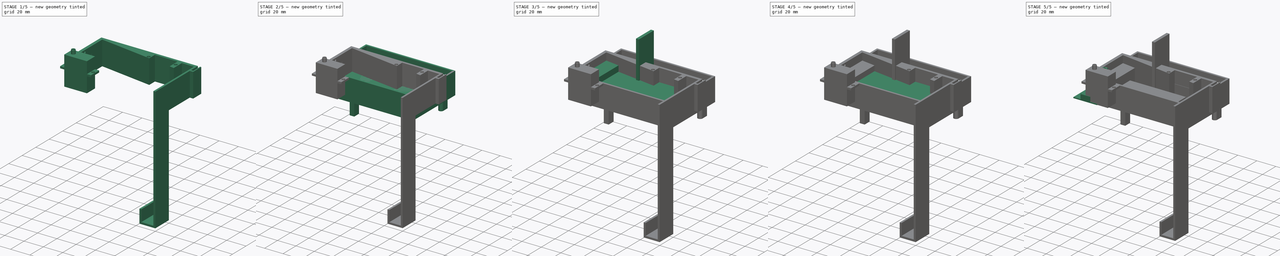
[diagram: build sequence overview — one tinted view per stage of 5, left to right]
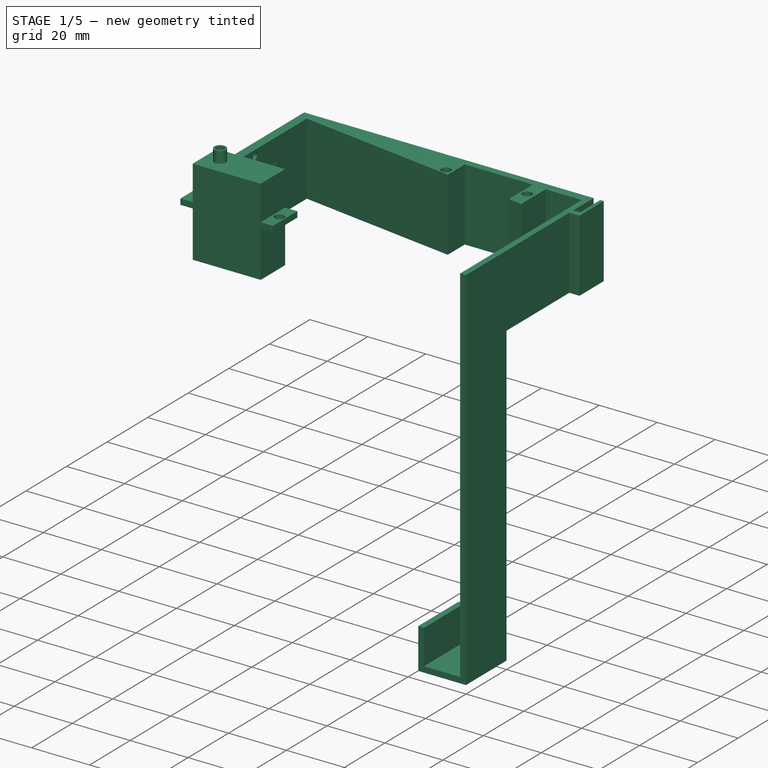
[diagram: stage 1 of 5 — iso view after this stage's code; geometry added in this stage tinted green]
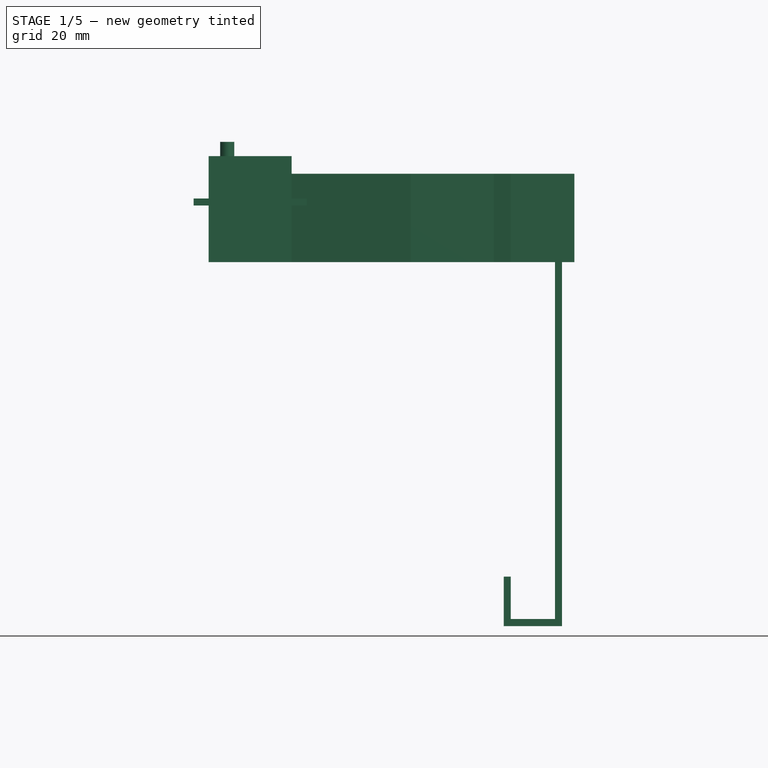
[diagram: stage 1 of 5 — front view after this stage's code; geometry added in this stage tinted green]
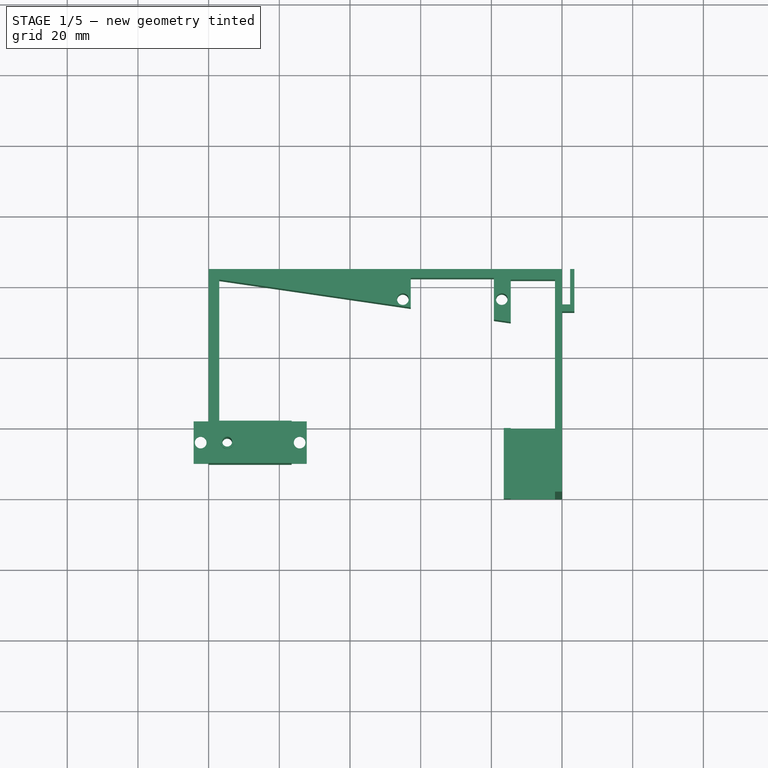
[diagram: stage 1 of 5 — top view after this stage's code; geometry added in this stage tinted green]
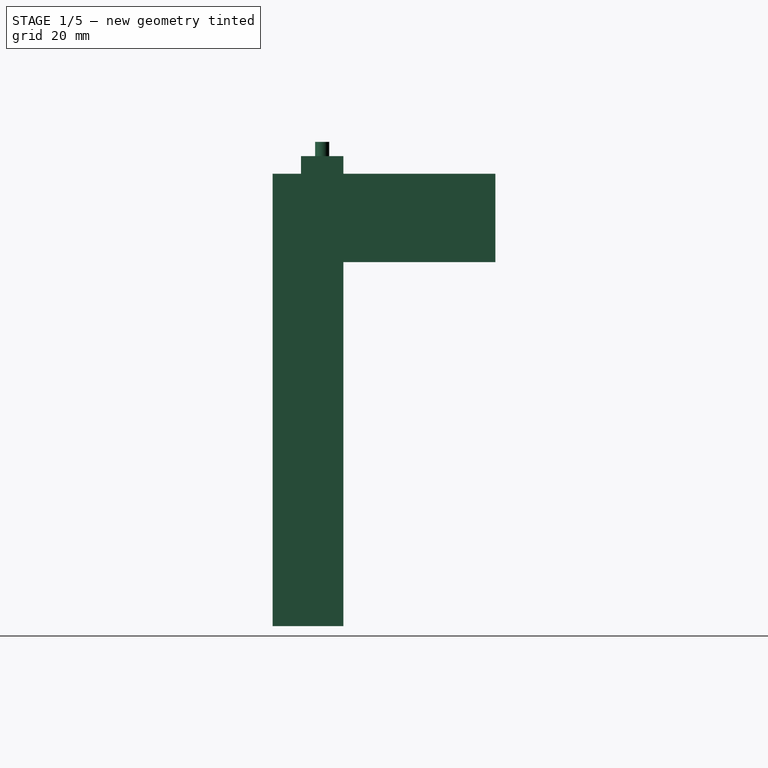
[diagram: stage 1 of 5 — right view after this stage's code; geometry added in this stage tinted green]
FCSTD DOCUMENT  (FreeCAD 0.19R24276 (Git))
Label: housing
License: All rights reserved
LicenseURL: http://en.wikipedia.org/wiki/All_rights_reserved
objects: Sketcher::SketchObject×28, PartDesign::CoordinateSystem×25, PartDesign::Pad×18, PartDesign::Body×10, PartDesign::Pocket×10, App::Link×9, PartDesign::AdditiveBox×5, Spreadsheet::Sheet×4, App::DocumentObjectGroup×4, PartDesign::SubtractiveBox×4, App::FeaturePython×1, PartDesign::AdditiveCylinder×1, PartDesign::SubtractiveCylinder×1, App::Part×1
note: 141 computed .brp shape members not serialized (recipe doc carries the construction recipe); baked Part::Feature solids carry a one-line shape summary decoded from their .brp

FEATURE [PartDesign::Body] Body  label="Camera"
  Group = -> [Sketch,Pad,Sketch001,Pad001]
  Origin = -> Origin
  Tip = -> Pad001
FEATURE [Spreadsheet::Sheet] Spreadsheet  label="CameraProps"
  cells = A2=BoardSize; B2(BoardSize)==25mm; A3=HoleRadius; B3(HoleRadius)==1.1mm; A4=HoleDistanceTop; B4(HoleDistanceTop)==2mm; A5=HoleDistanceBottom; B5(HoleDistanceBottom)==10.5mm; A6=HoleDistanceSide; B6(HoleDistanceSide)==2mm; A7=LensBumpWidth; B7(LensBumpWidth)==10mm
FEATURE [PartDesign::CoordinateSystem] LCS_Origin
  AttacherType = Attacher::AttachEngine3D
  MapMode = 2
  Support = -> [X_Axis001]
FEATURE [App::DocumentObjectGroup] Constraints
FEATURE [App::FeaturePython] Variables  # WARN: FeaturePython — macro-defined, semantics opaque (R4)
FEATURE [PartDesign::CoordinateSystem] LCS_0
  AttacherType = Attacher::AttachEngine3D
  MapMode = 2
  Support = -> [X_Axis002]
FEATURE [Sketcher::SketchObject] Sketch002  label="CA_BaseSketch"
  FullyConstrained = true
  MapMode = 5
  Support = -> [XY_Plane002]
  expr: Constraints[24] = <<CameraProps>>.BoardSize + 3mm
  sketch-geometry (21):
    g0: LineSegment StartX=100 StartY=33 StartZ=0 EndX=100 EndY=43 EndZ=0
    g1: LineSegment StartX=98 StartY=43 StartZ=0 EndX=0 EndY=43 EndZ=0
    g2: LineSegment StartX=0 StartY=43 StartZ=0 EndX=0 EndY=0 EndZ=0
    g3: LineSegment StartX=0 StartY=0 StartZ=0 EndX=3 EndY=0 EndZ=0
    g4: LineSegment StartX=3 StartY=0 StartZ=0 EndX=3 EndY=40 EndZ=0
    g5: LineSegment StartX=98 StartY=-20 StartZ=0 EndX=98 EndY=40 EndZ=0
    g6: LineSegment StartX=98 StartY=40 StartZ=0 EndX=85.5 EndY=40 EndZ=0
    g7: LineSegment StartX=85.5 StartY=40 StartZ=0 EndX=85.5 EndY=28 EndZ=0
    g8: LineSegment StartX=85.5 StartY=28 StartZ=0 EndX=3 EndY=40 EndZ=0
    g9: LineSegment StartX=98 StartY=40 StartZ=0 EndX=98 EndY=43 EndZ=0
    g10: LineSegment StartX=3 StartY=40 StartZ=0 EndX=3 EndY=43 EndZ=0
    g11: LineSegment StartX=100 StartY=33 StartZ=0 EndX=102.3 EndY=33 EndZ=0
    g12: LineSegment StartX=102.3 StartY=33 StartZ=0 EndX=102.3 EndY=43 EndZ=0
    g13: LineSegment StartX=103.5 StartY=31 StartZ=0 EndX=103.5 EndY=43 EndZ=0
    g14: LineSegment StartX=102.3 StartY=43 StartZ=0 EndX=103.5 EndY=43 EndZ=0
    g15: LineSegment StartX=98 StartY=-20 StartZ=0 EndX=100 EndY=-20 EndZ=0
    g16: LineSegment StartX=100 StartY=-20 StartZ=0 EndX=100 EndY=31 EndZ=0
    g17: LineSegment StartX=100 StartY=31 StartZ=0 EndX=103.5 EndY=31 EndZ=0
    g18: LineSegment StartX=100 StartY=33 StartZ=0 EndX=100 EndY=31 EndZ=0
    g19: LineSegment StartX=100 StartY=33 StartZ=0 EndX=98 EndY=33 EndZ=0
    g20: LineSegment StartX=98 StartY=43 StartZ=0 EndX=100 EndY=43 EndZ=0
  constraints (60):
    c: Vertical(g0)
    c: Horizontal(g1)
    c: Coincident(g2,g1)
    c: Vertical(g2)
    c: Coincident(g3,g2)
    c: Horizontal(g3)
    c: Coincident(g4,g3)
    c: Vertical(g4)
    c: Vertical(g5)
    c: Coincident(g6,g5)
    c: Coincident(g7,g6)
    c: Vertical(g7)
    c: Coincident(g8,g7)
    c: Coincident(g8,g4)
    c: Horizontal(g6)
    c: Coincident(g9,g5)
    c: Vertical(g9)
    c: Coincident(g10,g4)
    c: PointOnObject(g10,g1)
    c: Vertical(g10)
    c: Equal(g10,g9)
    c: Distance(g10) = 3
    c: Distance(g6) = 12.5
    c: Coincident(g2,g-1)
    c: DistanceY(g3,g7) = 28
    c: Coincident(g11,g0)
    c: Horizontal(g11)
    c: Coincident(g12,g11)
    c: Vertical(g12)
    c: Distance(g7) = 12
    c: Vertical(g13)
    c: Coincident(g14,g12)
    c: Coincident(g14,g13)
    c: Horizontal(g14)
    c: Equal(g0,g12)
    c: Equal(g3,g10)
    c: Coincident(g15,g5)
    c: Horizontal(g15)
    c: Coincident(g16,g15)
    c: Vertical(g16)
    c: Coincident(g17,g16)
    c: Coincident(g17,g13)
    c: Horizontal(g17)
    c: Coincident(g18,g0)
    c: Coincident(g18,g16)
    c: Vertical(g18)
    c: Coincident(g19,g0)
    c: PointOnObject(g19,g5)
    c: Horizontal(g19)
    c: Equal(g19,g18)
    c: Distance(g5) = 60
    c: Distance(g0) = 10
    c: Coincident(g1,g9)
    c: Coincident(g20,g1)
    c: Coincident(g20,g0)
    c: Horizontal(g20)
    c: DistanceX(g1,g0) = 100  'ArmLength'
    c: Distance(g11) = 2.3
    c: Distance(g14) = 1.2
    c: Distance(g19) = 2
FEATURE [PartDesign::Pad] Pad002  label="CA_Base"
  Direction = (1,1,1)
  Length = 25
  Length2 = 100
  Profile = -> Sketch002
  Type = 0
  expr: Length = <<CameraProps>>.BoardSize
FEATURE [Sketcher::SketchObject] Sketch003  label="CA_CamCutoutSketch"
  FullyConstrained = false
  MapMode = 5
  Placement = pos=(0,0,0) rot=(0.57735,0.57735,0.57735;2.0944rad)
  Support = -> [YZ_Plane002]
  expr: Constraints[43] = <<CameraProps>>.HoleRadius
  expr: Constraints[41] = <<CameraProps>>.HoleDistanceSide
  expr: Constraints[40] = <<CameraProps>>.HoleDistanceBottom
  expr: Constraints[39] = <<CameraProps>>.HoleDistanceTop
  expr: Constraints[57] = <<CameraProps>>.LensBumpWidth
  expr: Constraints[10] = <<CameraProps>>.BoardSize
  sketch-geometry (22):
    g0: LineSegment StartX=0 StartY=0 StartZ=0 EndX=25 EndY=0 EndZ=0
    g1: LineSegment StartX=25 StartY=0 StartZ=0 EndX=25 EndY=25 EndZ=0
    g2: LineSegment StartX=25 StartY=25 StartZ=0 EndX=0 EndY=25 EndZ=0
    g3: LineSegment StartX=0 StartY=25 StartZ=0 EndX=0 EndY=0 EndZ=0
    g4: Circle CenterX=2 CenterY=23 CenterZ=0 NormalX=0 NormalY=0 NormalZ=1 AngleXU=0 Radius=1.1
    g5: Circle CenterX=2 CenterY=2 CenterZ=0 NormalX=0 NormalY=0 NormalZ=1 AngleXU=0 Radius=1.1
    g6: Circle CenterX=14.5 CenterY=23 CenterZ=0 NormalX=0 NormalY=0 NormalZ=1 AngleXU=0 Radius=1.1
    g7: Circle CenterX=14.5 CenterY=2 CenterZ=0 NormalX=0 NormalY=0 NormalZ=1 AngleXU=0 Radius=1.1
    g8: LineSegment StartX=2 StartY=23 StartZ=0 EndX=2 EndY=25 EndZ=0
    g9: LineSegment StartX=2 StartY=23 StartZ=0 EndX=0 EndY=23 EndZ=0
    g10: LineSegment StartX=14.5 StartY=23 StartZ=0 EndX=14.5 EndY=25 EndZ=0
    g11: LineSegment StartX=14.5 StartY=23 StartZ=0 EndX=25 EndY=23 EndZ=0
    g12: LineSegment StartX=14.5 StartY=2 StartZ=0 EndX=25 EndY=2 EndZ=0
    g13: LineSegment StartX=14.5 StartY=2 StartZ=0 EndX=14.5 EndY=0 EndZ=0
    g14: LineSegment StartX=2 StartY=2 StartZ=0 EndX=2 EndY=0 EndZ=0
    g15: LineSegment StartX=2 StartY=2 StartZ=0 EndX=0 EndY=2 EndZ=0
    g16: LineSegment StartX=25 StartY=17.5 StartZ=0 EndX=0 EndY=17.5 EndZ=0
    g17: LineSegment StartX=0 StartY=17.5 StartZ=0 EndX=0 EndY=7.5 EndZ=0
    g18: LineSegment StartX=0 StartY=7.5 StartZ=0 EndX=25 EndY=7.5 EndZ=0
    g19: LineSegment StartX=25 StartY=7.5 StartZ=0 EndX=25 EndY=17.5 EndZ=0
    g20: LineSegment StartX=7.22505 StartY=17.5 StartZ=0 EndX=7.22505 EndY=25 EndZ=0
    g21: LineSegment StartX=7.0351 StartY=7.5 StartZ=0 EndX=7.0351 EndY=0 EndZ=0
  constraints (65):
    c: Coincident(g0,g1)
    c: Coincident(g1,g2)
    c: Coincident(g2,g3)
    c: Coincident(g3,g0)
    c: Horizontal(g0)
    c: Horizontal(g2)
    c: Vertical(g1)
    c: Vertical(g3)
    c: Coincident(g0,g-1)
    c: Equal(g2,g1)
    c: Distance(g2) = 25
    c: Coincident(g8,g4)
    c: PointOnObject(g8,g2)
    c: Vertical(g8)
    c: PointOnObject(g9,g-2)
    c: Horizontal(g9)
    c: Coincident(g9,g4)
    c: Coincident(g10,g6)
    c: PointOnObject(g10,g2)
    c: Vertical(g10)
    c: Coincident(g11,g6)
    c: PointOnObject(g11,g1)
    c: Horizontal(g11)
    c: Coincident(g12,g7)
    c: PointOnObject(g12,g1)
    c: Horizontal(g12)
    c: Coincident(g13,g7)
    c: PointOnObject(g13,g0)
    c: Vertical(g13)
    c: Coincident(g14,g5)
    c: Vertical(g14)
    c: Coincident(g15,g5)
    c: PointOnObject(g15,g3)
    c: Horizontal(g15)
    c: Equal(g10,g8)
    c: Equal(g8,g14)
    c: Equal(g14,g13)
    c: Equal(g9,g15)
    c: Equal(g11,g12)
    c: Distance(g9) = 2
    c: Distance(g11) = 10.5
    c: Distance(g13) = 2
    c: PointOnObject(g14,g0)
    c: Radius(g6) = 1.1
    c: Equal(g6,g7)
    c: Equal(g6,g5)
    c: Equal(g6,g4)
    c: Coincident(g16,g17)
    c: Coincident(g17,g18)
    c: Coincident(g18,g19)
    c: Coincident(g19,g16)
    c: Horizontal(g16)
    c: Horizontal(g18)
    c: Vertical(g17)
    c: Vertical(g19)
    c: PointOnObject(g16,g1)
    c: PointOnObject(g17,g-2)
    c: DistanceY(g17,g16) = 10
    c: PointOnObject(g20,g16)
    c: PointOnObject(g20,g2)
    c: Vertical(g20)
    c: PointOnObject(g21,g18)
    c: PointOnObject(g21,g0)
    c: Vertical(g21)
    c: Equal(g21,g20)
FEATURE [PartDesign::Pocket] Pocket  label="CA_CamCutout"
  BaseFeature = -> Pad002
  Length = 5
  Length2 = 100
  Profile = -> Sketch003
  Reversed = true
  Type = 0
FEATURE [PartDesign::CoordinateSystem] LCS_0001
  AttacherType = Attacher::AttachEngine3D
  MapMode = 2
  Support = -> [X_Axis005]
FEATURE [Sketcher::SketchObject] Sketch014  label="HT_BaseCutoutsSketch"
  AttachmentOffset = pos=(0,0,2) rot=(0,0,1;0rad)
  FullyConstrained = false
  MapMode = 5
  Placement = pos=(0,0,2) rot=(0,0,1;0rad)
  Support = -> [XY_Plane005]
  expr: Constraints[79] = <<RaspiProps>>.HoleDistanceTop
  expr: Constraints[42] = <<RaspiProps>>.PortsMargin + 1mm
  expr: Constraints[64] = <<RaspiProps>>.CamCableWidth + 4mm
  expr: Constraints[80] = <<RaspiProps>>.HoleDistanceSide
  expr: Constraints[74] = <<RaspiProps>>.CamCableOffsetY - 2mm
  expr: Constraints[18] = <<RaspiProps>>.Height
  expr: Constraints[73] = <<RaspiProps>>.CamCableOffsetX
  expr: Constraints[65] = <<RaspiProps>>.CamCableHeight + 4mm
  expr: Constraints[41] = <<RaspiProps>>.SdcardMargin + 1mm
  expr: Constraints[17] = <<RaspiProps>>.Width
  sketch-geometry (38):
    g0: LineSegment StartX=0 StartY=0 StartZ=0 EndX=97 EndY=0 EndZ=0
    g1: LineSegment StartX=97 StartY=0 StartZ=0 EndX=97 EndY=66 EndZ=0
    g2: LineSegment StartX=97 StartY=66 StartZ=0 EndX=0 EndY=66 EndZ=0
    g3: LineSegment StartX=0 StartY=66 StartZ=0 EndX=0 EndY=0 EndZ=0
    g4: LineSegment StartX=6 StartY=61 StartZ=0 EndX=91 EndY=61 EndZ=0
    g5: LineSegment StartX=91 StartY=61 StartZ=0 EndX=91 EndY=5 EndZ=0
    g6: LineSegment StartX=91 StartY=5 StartZ=0 EndX=6 EndY=5 EndZ=0
    g7: LineSegment StartX=6 StartY=5 StartZ=0 EndX=6 EndY=61 EndZ=0
    g8: LineSegment StartX=2 StartY=64 StartZ=0 EndX=95 EndY=64 EndZ=0
    g9: LineSegment StartX=95 StartY=64 StartZ=0 EndX=95 EndY=2 EndZ=0
    g10: LineSegment StartX=95 StartY=2 StartZ=0 EndX=2 EndY=2 EndZ=0
    g11: LineSegment StartX=2 StartY=2 StartZ=0 EndX=2 EndY=64 EndZ=0
    g12: LineSegment StartX=91 StartY=61 StartZ=0 EndX=95 EndY=61 EndZ=0
    g13: LineSegment StartX=91 StartY=61 StartZ=0 EndX=91 EndY=64 EndZ=0
    g14: LineSegment StartX=6 StartY=5 StartZ=0 EndX=6 EndY=2 EndZ=0
    g15: LineSegment StartX=6 StartY=5 StartZ=0 EndX=2 EndY=5 EndZ=0
    g16: LineSegment StartX=2 StartY=64 StartZ=0 EndX=2 EndY=66 EndZ=0
    g17: LineSegment StartX=2 StartY=64 StartZ=0 EndX=0 EndY=64 EndZ=0
    g18: LineSegment StartX=95 StartY=2 StartZ=0 EndX=97 EndY=2 EndZ=0
    g19: LineSegment StartX=95 StartY=2 StartZ=0 EndX=95 EndY=0 EndZ=0
    g20: LineSegment StartX=48.5 StartY=62 StartZ=0 EndX=48.5 EndY=35 EndZ=0
    g21: LineSegment StartX=48.5 StartY=35 StartZ=0 EndX=43.5 EndY=35 EndZ=0
    g22: LineSegment StartX=43.5 StartY=35 StartZ=0 EndX=43.5 EndY=62 EndZ=0
    g23: GeomPoint X=46 Y=62 Z=0
    g24: LineSegment StartX=43.5 StartY=62 StartZ=0 EndX=46 EndY=62 EndZ=0
    g25: LineSegment StartX=46 StartY=62 StartZ=0 EndX=48.5 EndY=62 EndZ=0
    g26: LineSegment StartX=87.5 StartY=57.5 StartZ=0 EndX=91 EndY=57.5 EndZ=0
    g27: LineSegment StartX=87.5 StartY=57.5 StartZ=0 EndX=87.5 EndY=61 EndZ=0
    g28: LineSegment StartX=33.5 StartY=62 StartZ=0 EndX=20.5 EndY=62 EndZ=0
    g29: LineSegment StartX=20.5 StartY=62 StartZ=0 EndX=20.5 EndY=35 EndZ=0
    g30: LineSegment StartX=20.5 StartY=35 StartZ=0 EndX=33.5 EndY=35 EndZ=0
    g31: LineSegment StartX=33.5 StartY=35 StartZ=0 EndX=33.5 EndY=62 EndZ=0
    g32: LineSegment StartX=33.5 StartY=35 StartZ=0 EndX=43.5 EndY=35 EndZ=0
    g33: LineSegment StartX=58.5 StartY=62 StartZ=0 EndX=71.5 EndY=62 EndZ=0
    g34: LineSegment StartX=71.5 StartY=62 StartZ=0 EndX=71.5 EndY=35 EndZ=0
    g35: LineSegment StartX=71.5 StartY=35 StartZ=0 EndX=58.5 EndY=35 EndZ=0
    g36: LineSegment StartX=58.5 StartY=35 StartZ=0 EndX=58.5 EndY=62 EndZ=0
    g37: LineSegment StartX=48.5 StartY=35 StartZ=0 EndX=58.5 EndY=35 EndZ=0
  constraints (109):
    c: Coincident(g0,g1)
    c: Coincident(g1,g2)
    c: Coincident(g2,g3)
    c: Coincident(g3,g0)
    c: Horizontal(g0)
    c: Horizontal(g2)
    c: Vertical(g1)
    c: Vertical(g3)
    c: Coincident(g0,g-1)
    c: Coincident(g4,g5)
    c: Coincident(g5,g6)
    c: Coincident(g6,g7)
    c: Coincident(g7,g4)
    c: Horizontal(g4)
    c: Horizontal(g6)
    c: Vertical(g5)
    c: Vertical(g7)
    c: Distance(g4) = 85
    c: Distance(g7) = 56
    c: Coincident(g8,g9)
    c: Coincident(g9,g10)
    c: Coincident(g10,g11)
    c: Coincident(g11,g8)
    c: Horizontal(g8)
    c: Horizontal(g10)
    c: Vertical(g9)
    c: Vertical(g11)
    c: Coincident(g12,g4)
    c: PointOnObject(g12,g9)
    c: Horizontal(g12)
    c: Coincident(g13,g4)
    c: PointOnObject(g13,g8)
    c: Vertical(g13)
    c: Coincident(g14,g6)
    c: PointOnObject(g14,g10)
    c: Vertical(g14)
    c: PointOnObject(g15,g11)
    c: Horizontal(g15)
    c: Coincident(g15,g6)
    c: Equal(g13,g14)
    c: Distance(g13) = 3
    c: Distance(g12) = 4
    c: Distance(g15) = 4
    c: Coincident(g16,g8)
    c: PointOnObject(g16,g2)
    c: Vertical(g16)
    c: Coincident(g17,g8)
    c: PointOnObject(g17,g3)
    c: Horizontal(g17)
    c: Coincident(g18,g9)
    c: PointOnObject(g18,g1)
    c: Horizontal(g18)
    c: Coincident(g19,g9)
    c: PointOnObject(g19,g0)
    c: Vertical(g19)
    c: Equal(g17,g16)
    c: Equal(g16,g18)
    c: Equal(g18,g19)
    c: Distance(g17) = 2
    c: Coincident(g20,g21)
    c: Coincident(g21,g22)
    c: Horizontal(g21)
    c: Vertical(g20)
    c: Vertical(g22)
    c: Distance(g20) = 27
    c: Distance(g21) = 5
    c: Coincident(g24,g22)
    c: Coincident(g24,g23)
    c: Coincident(g25,g24)
    c: Coincident(g25,g20)
    c: Horizontal(g24)
    c: Horizontal(g25)
    c: Equal(g24,g25)
    c: DistanceX(g24,g4) = 45
    c: DistanceY(g22,g4) = -1
    c: PointOnObject(g26,g5)
    c: Horizontal(g26)
    c: PointOnObject(g27,g4)
    c: Vertical(g27)
    c: Distance(g26) = 3.5
    c: Distance(g27) = 3.5
    c: Coincident(g28,g29)
    c: Coincident(g29,g30)
    c: Coincident(g30,g31)
    c: Coincident(g31,g28)
    c: Horizontal(g28)
    c: Horizontal(g30)
    c: Vertical(g29)
    c: Vertical(g31)
    c: Distance(g28) = 13
    c: Distance(g31) = 27
    c: Coincident(g32,g30)
    c: Coincident(g32,g21)
    c: Horizontal(g32)
    c: Distance(g32) = 10
    c: Coincident(g33,g34)
    c: Coincident(g34,g35)
    c: Coincident(g35,g36)
    c: Coincident(g36,g33)
    c: Horizontal(g33)
    c: Horizontal(g35)
    c: Vertical(g34)
    c: Vertical(g36)
    c: Distance(g33) = 13
    c: Distance(g36) = 27
    c: Coincident(g37,g20)
    c: Coincident(g37,g35)
    c: Horizontal(g37)
    c: Distance(g37) = 10
FEATURE [Sketcher::SketchObject] Sketch015  label="HT_WallsSketch"
  FullyConstrained = true
  MapMode = 5
  Support = -> [XY_Plane005]
  expr: Constraints[8] = <<RaspiProps>>.Width + <<RaspiProps>>.PortsMargin + <<RaspiProps>>.SdcardMargin + 2mm
  expr: Constraints[9] = <<RaspiProps>>.Height + 6mm
  sketch-geometry (12):
    g0: LineSegment StartX=2 StartY=64 StartZ=0 EndX=95 EndY=64 EndZ=0
    g1: LineSegment StartX=95 StartY=64 StartZ=0 EndX=95 EndY=2 EndZ=0
    g2: LineSegment StartX=95 StartY=2 StartZ=0 EndX=2 EndY=2 EndZ=0
    g3: LineSegment StartX=2 StartY=2 StartZ=0 EndX=2 EndY=64 EndZ=0
    g4: LineSegment StartX=0 StartY=0 StartZ=0 EndX=97 EndY=0 EndZ=0
    g5: LineSegment StartX=97 StartY=0 StartZ=0 EndX=97 EndY=66 EndZ=0
    g6: LineSegment StartX=97 StartY=66 StartZ=0 EndX=0 EndY=66 EndZ=0
    g7: LineSegment StartX=0 StartY=66 StartZ=0 EndX=0 EndY=0 EndZ=0
    g8: LineSegment StartX=2 StartY=64 StartZ=0 EndX=2 EndY=66 EndZ=0
    g9: LineSegment StartX=2 StartY=64 StartZ=0 EndX=0 EndY=64 EndZ=0
    g10: LineSegment StartX=95 StartY=2 StartZ=0 EndX=97 EndY=2 EndZ=0
    g11: LineSegment StartX=95 StartY=2 StartZ=0 EndX=95 EndY=0 EndZ=0
  constraints (35):
    c: Coincident(g0,g1)
    c: Coincident(g1,g2)
    c: Coincident(g2,g3)
    c: Coincident(g3,g0)
    c: Horizontal(g0)
    c: Horizontal(g2)
    c: Vertical(g1)
    c: Vertical(g3)
    c: Distance(g0) = 93
    c: Distance(g1) = 62
    c: Coincident(g4,g5)
    c: Coincident(g5,g6)
    c: Coincident(g6,g7)
    c: Coincident(g7,g4)
    c: Horizontal(g4)
    c: Horizontal(g6)
    c: Vertical(g5)
    c: Vertical(g7)
    c: Coincident(g4,g-1)
    c: Coincident(g8,g0)
    c: PointOnObject(g8,g6)
    c: Vertical(g8)
    c: Coincident(g9,g0)
    c: PointOnObject(g9,g7)
    c: Horizontal(g9)
    c: Coincident(g10,g1)
    c: PointOnObject(g10,g5)
    c: Horizontal(g10)
    c: Coincident(g11,g1)
    c: PointOnObject(g11,g4)
    c: Vertical(g11)
    c: Equal(g11,g10)
    c: Equal(g10,g8)
    c: Equal(g8,g9)
    c: Distance(g8) = 2
FEATURE [Sketcher::SketchObject] Sketch016  label="HT_HoleSpacersSketch"
  FullyConstrained = false
  MapMode = 5
  Support = -> [XY_Plane005]
  expr: Constraints[23] = <<RaspiProps>>.HoleDistanceSide
  expr: Constraints[28] = <<RaspiProps>>.HoleRadius - 0.2mm
  expr: Constraints[21] = <<RaspiProps>>.Height - <<RaspiProps>>.HoleDistanceSide * 2
  expr: Constraints[20] = <<RaspiProps>>.Width - <<RaspiProps>>.HoleDistanceBottom - <<RaspiProps>>.HoleDistanceTop
  expr: Constraints[11] = 5mm
  expr: Constraints[10] = <<RaspiProps>>.PortsMargin + 3mm
  expr: Constraints[22] = <<RaspiProps>>.HoleDistanceTop
  expr: Constraints[9] = <<RaspiProps>>.Height
  expr: Constraints[8] = <<RaspiProps>>.Width
  sketch-geometry (46):
    g0: LineSegment StartX=6 StartY=5 StartZ=0 EndX=91 EndY=5 EndZ=0
    g1: LineSegment StartX=91 StartY=5 StartZ=0 EndX=91 EndY=61 EndZ=0
    g2: LineSegment StartX=91 StartY=61 StartZ=0 EndX=6 EndY=61 EndZ=0
    g3: LineSegment StartX=6 StartY=61 StartZ=0 EndX=6 EndY=5 EndZ=0
    g4: LineSegment StartX=29.5 StartY=57.5 StartZ=0 EndX=87.5 EndY=57.5 EndZ=0
    g5: LineSegment StartX=87.5 StartY=57.5 StartZ=0 EndX=87.5 EndY=8.5 EndZ=0
    g6: LineSegment StartX=87.5 StartY=8.5 StartZ=0 EndX=29.5 EndY=8.5 EndZ=0
    g7: LineSegment StartX=29.5 StartY=8.5 StartZ=0 EndX=29.5 EndY=57.5 EndZ=0
    g8: Circle CenterX=29.5 CenterY=57.5 CenterZ=0 NormalX=0 NormalY=0 NormalZ=1 AngleXU=0 Radius=1.3
    g9: Circle CenterX=87.5 CenterY=57.5 CenterZ=0 NormalX=0 NormalY=0 NormalZ=1 AngleXU=0 Radius=1.3
    g10: Circle CenterX=87.5 CenterY=8.5 CenterZ=0 NormalX=0 NormalY=0 NormalZ=1 AngleXU=0 Radius=1.3
    g11: Circle CenterX=29.5 CenterY=8.5 CenterZ=0 NormalX=0 NormalY=0 NormalZ=1 AngleXU=0 Radius=1.3
    g12: Circle CenterX=29.5 CenterY=57.5 CenterZ=0 NormalX=0 NormalY=0 NormalZ=1 AngleXU=0 Radius=2.5
    g13: Circle CenterX=87.5 CenterY=57.5 CenterZ=0 NormalX=0 NormalY=0 NormalZ=1 AngleXU=0 Radius=2.5
    g14: Circle CenterX=29.5 CenterY=8.5 CenterZ=0 NormalX=0 NormalY=0 NormalZ=1 AngleXU=0 Radius=2.5
    g15: Circle CenterX=87.5 CenterY=8.5 CenterZ=0 NormalX=0 NormalY=0 NormalZ=1 AngleXU=0 Radius=2.5
    g16: LineSegment StartX=28.833 StartY=56.3842 StartZ=0 EndX=28.2172 EndY=55.3542 EndZ=0
    g17: LineSegment StartX=86.9047 StartY=56.3443 StartZ=0 EndX=86.3552 EndY=55.2775 EndZ=0
    g18: LineSegment StartX=28.6717 StartY=7.49802 StartZ=0 EndX=27.9072 EndY=6.57312 EndZ=0
    g19: LineSegment StartX=86.5028 StartY=7.66597 StartZ=0 EndX=85.5823 EndY=6.89609 EndZ=0
    g20: LineSegment StartX=0 StartY=64 StartZ=0 EndX=105.7 EndY=64 EndZ=0
    g21: LineSegment StartX=27 StartY=57.5 StartZ=0 EndX=27 EndY=64 EndZ=0
    g22: LineSegment StartX=32 StartY=57.5 StartZ=0 EndX=32 EndY=64 EndZ=0
    g23: LineSegment StartX=29.5 StartY=57.5 StartZ=0 EndX=27 EndY=57.5 EndZ=0
    g24: LineSegment StartX=29.5 StartY=57.5 StartZ=0 EndX=32 EndY=57.5 EndZ=0
    g25: ArcOfCircle CenterX=29.5 CenterY=57.5 CenterZ=0 NormalX=0 NormalY=0 NormalZ=1 AngleXU=0 Radius=2.5 StartAngle=3.14159 EndAngle=6.28319
    g26: LineSegment StartX=27 StartY=64 StartZ=0 EndX=32 EndY=64 EndZ=0
    g27: LineSegment StartX=87.5 StartY=57.5 StartZ=0 EndX=85 EndY=57.5 EndZ=0
    g28: LineSegment StartX=87.5 StartY=57.5 StartZ=0 EndX=90 EndY=57.5 EndZ=0
    g29: LineSegment StartX=85 StartY=57.5 StartZ=0 EndX=85 EndY=64 EndZ=0
    g30: LineSegment StartX=90 StartY=57.5 StartZ=0 EndX=90 EndY=64 EndZ=0
    g31: LineSegment StartX=90 StartY=64 StartZ=0 EndX=85 EndY=64 EndZ=0
    g32: ArcOfCircle CenterX=87.5 CenterY=57.5 CenterZ=0 NormalX=0 NormalY=0 NormalZ=1 AngleXU=0 Radius=2.5 StartAngle=3.14159 EndAngle=6.28319
    g33: LineSegment StartX=29.5 StartY=8.5 StartZ=0 EndX=32 EndY=8.5 EndZ=0
    g34: LineSegment StartX=29.5 StartY=8.5 StartZ=0 EndX=27 EndY=8.5 EndZ=0
    g35: LineSegment StartX=87.5 StartY=8.5 StartZ=0 EndX=85 EndY=8.5 EndZ=0
    g36: LineSegment StartX=87.5 StartY=8.5 StartZ=0 EndX=90 EndY=8.5 EndZ=0
    g37: ArcOfCircle CenterX=87.5 CenterY=8.5 CenterZ=0 NormalX=0 NormalY=0 NormalZ=1 AngleXU=0 Radius=2.5 StartAngle=3e-16 EndAngle=3.14159
    g38: LineSegment StartX=0 StartY=2 StartZ=0 EndX=132.04 EndY=2 EndZ=0
    g39: LineSegment StartX=27 StartY=8.5 StartZ=0 EndX=27 EndY=2 EndZ=0
    g40: LineSegment StartX=32 StartY=8.5 StartZ=0 EndX=32 EndY=2 EndZ=0
    g41: LineSegment StartX=32 StartY=2 StartZ=0 EndX=27 EndY=2 EndZ=0
    g42: LineSegment StartX=85 StartY=8.5 StartZ=0 EndX=85 EndY=2 EndZ=0
    g43: LineSegment StartX=90 StartY=8.5 StartZ=0 EndX=90 EndY=2 EndZ=0
    g44: LineSegment StartX=85 StartY=2 StartZ=0 EndX=90 EndY=2 EndZ=0
    g45: ArcOfCircle CenterX=29.5 CenterY=8.5 CenterZ=0 NormalX=0 NormalY=0 NormalZ=1 AngleXU=0 Radius=2.5 StartAngle=0 EndAngle=3.14159
  constraints (123):
    c: Coincident(g0,g1)
    c: Coincident(g1,g2)
    c: Coincident(g2,g3)
    c: Coincident(g3,g0)
    c: Horizontal(g0)
    c: Horizontal(g2)
    c: Vertical(g1)
    c: Vertical(g3)
    c: Distance(g2) = 85
    c: Distance(g1) = 56
    c: DistanceX(g-1,g0) = 6
    c: DistanceY(g-1,g0) = 5
    c: Coincident(g4,g5)
    c: Coincident(g5,g6)
    c: Coincident(g6,g7)
    c: Coincident(g7,g4)
    c: Horizontal(g4)
    c: Horizontal(g6)
    c: Vertical(g5)
    c: Vertical(g7)
    c: Distance(g4) = 58
    c: Distance(g5) = 49
    c: DistanceX(g5,g0) = 3.5
    c: DistanceY(g0,g5) = 3.5
    c: Coincident(g8,g4)
    c: Coincident(g9,g4)
    c: Coincident(g10,g5)
    c: Coincident(g11,g6)
    c: Radius(g8) = 1.3
    c: Equal(g8,g11)
    c: Equal(g8,g9)
    c: Equal(g8,g10)
    c: Coincident(g12,g8)
    c: Coincident(g13,g9)
    c: Coincident(g14,g11)
    c: Coincident(g15,g10)
    c: PointOnObject(g16,g8)
    c: PointOnObject(g16,g12)
    c: PointOnObject(g17,g9)
    c: PointOnObject(g17,g13)
    c: PointOnObject(g18,g11)
    c: PointOnObject(g18,g14)
    c: PointOnObject(g19,g10)
    c: PointOnObject(g19,g15)
    c: Perpendicular(g10,g19)
    c: Perpendicular(g11,g18)
    c: Perpendicular(g8,g16)
    c: Perpendicular(g9,g17)
    c: Equal(g19,g17)
    c: Equal(g17,g16)
    c: Equal(g16,g18)
    c: Distance(g16) = 1.2
    c: PointOnObject(g20,g-2)
    c: Horizontal(g20)
    c: DistanceY(g2,g20) = 3
    c: Distance(g20) = 105.7
    c: PointOnObject(g21,g12)
    c: PointOnObject(g21,g20)
    c: Vertical(g21)
    c: PointOnObject(g22,g20)
    c: Vertical(g22)
    c: Coincident(g23,g8)
    c: Coincident(g23,g21)
    c: Horizontal(g23)
    c: Coincident(g24,g8)
    c: Coincident(g24,g22)
    c: Coincident(g25,g8)
    c: Coincident(g25,g21)
    c: Coincident(g25,g22)
    c: Horizontal(g24)
    c: Coincident(g26,g21)
    c: Coincident(g26,g22)
    c: Coincident(g27,g9)
    c: PointOnObject(g27,g13)
    c: Coincident(g28,g9)
    c: Horizontal(g27)
    c: Coincident(g29,g27)
    c: PointOnObject(g29,g20)
    c: Vertical(g29)
    c: Coincident(g30,g28)
    c: PointOnObject(g30,g20)
    c: Vertical(g30)
    c: Coincident(g31,g30)
    c: Coincident(g31,g29)
    c: Coincident(g32,g9)
    c: Coincident(g32,g29)
    c: Coincident(g32,g30)
    c: Horizontal(g28)
    c: Coincident(g33,g11)
    c: PointOnObject(g33,g14)
    c: Coincident(g34,g11)
    c: Horizontal(g34)
    c: Horizontal(g33)
    c: Coincident(g35,g10)
    c: PointOnObject(g35,g15)
    c: Coincident(g36,g10)
    c: Horizontal(g35)
    c: Horizontal(g36)
    c: Coincident(g37,g10)
    c: PointOnObject(g38,g-2)
    c: Horizontal(g38)
    c: DistanceY(g-1,g38) = 2
    c: PointOnObject(g39,g38)
    c: Vertical(g39)
    c: PointOnObject(g40,g38)
    c: Vertical(g40)
    c: Coincident(g41,g40)
    c: Coincident(g41,g39)
    c: Coincident(g37,g36)
    c: Coincident(g42,g37)
    c: PointOnObject(g42,g38)
    c: Vertical(g42)
    c: Coincident(g43,g37)
    c: PointOnObject(g43,g38)
    c: Vertical(g43)
    c: Coincident(g44,g42)
    c: Coincident(g44,g43)
    c: Coincident(g37,g35)
    c: Coincident(g45,g11)
    c: Coincident(g45,g39)
    c: Coincident(g45,g40)
    c: Coincident(g39,g34)
    c: Coincident(g40,g33)
FEATURE [PartDesign::CoordinateSystem] RPI_TopRightScrewHoleTop
  AttacherType = Attacher::AttachEngine3D
  AttachmentOffset = pos=(0,0,1.4) rot=(0,0,1;0rad)
  MapMode = 11
  Placement = pos=(81.5,52.5,1.4) rot=(0,0,1;1.5708rad)
  Support = -> [Sketch005]
  expr: .AttachmentOffset.Base.z = <<RPI_Base>>.Length
FEATURE [PartDesign::Body] Raspi
  Group = -> [Sketch005,Pad003,RPI_TopRightScrewHole,Sketch009,Pad007,Sketch010,Pad008,Sketch011,Pad009,Sketch013,Pad010,RPI_TopRightScrewHoleTop]
  Origin = -> Origin003
  Tip = -> Pad010
FEATURE [PartDesign::CoordinateSystem] HB_TopRightScrewHole001  label="HT_TopRightScrewHole"
  AttacherType = Attacher::AttachEngine3D
  AttachmentOffset = pos=(0,0,-20) rot=(0,0,1;0rad)
  MapMode = 11
  Placement = pos=(87.5,57.5,-20) rot=(0,0,1;1.5708rad)
  Support = -> [Sketch016]
  expr: .AttachmentOffset.Base.z = -<<HT_HoleSpacers>>.Length
FEATURE [App::Link] HousingTop001
  AssemblyType = Asm4EE
  AttachedBy = #HB_TopRightScrewHole001
  AttachedTo = Raspi001#RPI_TopRightScrewHoleTop
  LinkPlacement = pos=(-7.11e-14,-7.1e-15,25.4) rot=(0,0,1;0rad)
  LinkedObject = -> HousingTop
  Placement = pos=(-7.11e-14,-7.1e-15,25.4) rot=(0,0,1;0rad)
  expr: Placement = Raspi001.Placement * RPI_TopRightScrewHoleTop.Placement * AttachmentOffset * HB_TopRightScrewHole001.Placement ^ -1
FEATURE [Sketcher::SketchObject] Sketch018  label="CA_SideClampSketch"
  FullyConstrained = true
  MapMode = 5
  Placement = pos=(0,0,0) rot=(1,0,0;1.5708rad)
  Support = -> [XZ_Plane002]
  expr: Constraints[26] = Sketch002.Constraints.ArmLength
  sketch-geometry (9):
    g0: LineSegment StartX=100 StartY=0 StartZ=0 EndX=100 EndY=-103 EndZ=0
    g1: LineSegment StartX=100 StartY=-103 StartZ=0 EndX=83.5 EndY=-103 EndZ=0
    g2: LineSegment StartX=83.5 StartY=-103 StartZ=0 EndX=83.5 EndY=-89 EndZ=0
    g3: LineSegment StartX=85.5 StartY=-89 StartZ=0 EndX=85.5 EndY=-101 EndZ=0
    g4: LineSegment StartX=85.5 StartY=-101 StartZ=0 EndX=98 EndY=-101 EndZ=0
    g5: LineSegment StartX=98 StartY=-101 StartZ=0 EndX=98 EndY=0 EndZ=0
    g6: LineSegment StartX=85.5 StartY=-89 StartZ=0 EndX=83.5 EndY=-89 EndZ=0
    g7: LineSegment StartX=98 StartY=-101 StartZ=0 EndX=98 EndY=-103 EndZ=0
    g8: LineSegment StartX=100 StartY=0 StartZ=0 EndX=98 EndY=0 EndZ=0
  constraints (27):
    c: PointOnObject(g0,g-1)
    c: Vertical(g0)
    c: Horizontal(g1)
    c: Vertical(g2)
    c: Vertical(g3)
    c: Horizontal(g4)
    c: PointOnObject(g5,g-1)
    c: Vertical(g5)
    c: Distance(g4) = 12.5
    c: Coincident(g4,g5)
    c: Coincident(g6,g3)
    c: Coincident(g6,g2)
    c: Horizontal(g6)
    c: Coincident(g7,g4)
    c: PointOnObject(g7,g1)
    c: Vertical(g7)
    c: Coincident(g8,g0)
    c: Coincident(g8,g5)
    c: Equal(g8,g6)
    c: Equal(g6,g7)
    c: Distance(g6) = 2
    c: Coincident(g1,g2)
    c: Coincident(g3,g4)
    c: Distance(g3) = 12
    c: Distance(g0) = 103
    c: Coincident(g1,g0)
    c: DistanceX(g-1,g0) = 100
FEATURE [PartDesign::Pad] Pad015  label="CA_SideClamp"
  BaseFeature = -> Pocket
  Direction = (1,1,1)
  Length = 20
  Length2 = 100
  Profile = -> Sketch018
  Type = 0
FEATURE [PartDesign::Body] HousingBottom  label="RaspiHousingBottom"
  Group = -> [Sketch006,Pad004,Sketch007,Pad005,Sketch008,Pad006,HB_TopRightScrewHole,LCS_Origin001,Sketch012,Pocket001,Sketch026,Pocket007]
  Origin = -> Origin004
  Tip = -> Pocket007
FEATURE [Spreadsheet::Sheet] Spreadsheet003  label="ServoProps"
  cells = A2=X; B2(X)==23.5mm; A3=Y; B3(Y)==12mm; A4=Z; B4(Z)==30mm; A5=FlapHoleDistance; B5(FlapHoleDistance)==X + 4.5mm; A6=FlapHoleRadius; B6(FlapHoleRadius)==1.65mm; A7=GearHeight; B7(GearHeight)==4mm; A8=GearRadius; B8(GearRadius)==2mm; A9=GearDistanceToEdge; B9(GearDistanceToEdge)==5.25mm; A10=FlapUdersideDistanceToBottom; B10(FlapUdersideDistanceToBottom)==16mm; A11=FlapZ; B11(FlapZ)==2mm; A12=FlapWidth; B12(FlapWidth)==32mm; A13=GearInnerHoleRadius; B13(GearInnerHoleRadius)==1.4mm
FEATURE [PartDesign::CoordinateSystem] LCS_0006
  AttacherType = Attacher::AttachEngine3D
  MapMode = 2
  Support = -> [X_Axis010]
FEATURE [Sketcher::SketchObject] Sketch027  label="ServBaseSketch"
  FullyConstrained = true
  MapMode = 5
  Placement = pos=(0,0,0) rot=(1,0,0;1.5708rad)
  Support = -> [XZ_Plane010]
  expr: Constraints[27] = <<ServoProps>>.FlapWidth
  expr: Constraints[30] = <<ServoProps>>.FlapZ
  expr: Constraints[31] = <<ServoProps>>.Z
  expr: Constraints[32] = <<ServoProps>>.FlapUdersideDistanceToBottom
  expr: Constraints[33] = <<ServoProps>>.X
  sketch-geometry (12):
    g0: LineSegment StartX=0 StartY=0 StartZ=0 EndX=23.5 EndY=0 EndZ=0
    g1: LineSegment StartX=23.5 StartY=0 StartZ=0 EndX=23.5 EndY=16 EndZ=0
    g2: LineSegment StartX=23.5 StartY=16 StartZ=0 EndX=27.75 EndY=16 EndZ=0
    g3: LineSegment StartX=27.75 StartY=16 StartZ=0 EndX=27.75 EndY=18 EndZ=0
    g4: LineSegment StartX=27.75 StartY=18 StartZ=0 EndX=23.5 EndY=18 EndZ=0
    g5: LineSegment StartX=23.5 StartY=18 StartZ=0 EndX=23.5 EndY=30 EndZ=0
    g6: LineSegment StartX=23.5 StartY=30 StartZ=0 EndX=0 EndY=30 EndZ=0
    g7: LineSegment StartX=1e-16 StartY=30 StartZ=0 EndX=1e-16 EndY=18 EndZ=0
    g8: LineSegment StartX=1e-16 StartY=18 StartZ=0 EndX=-4.25 EndY=18 EndZ=0
    g9: LineSegment StartX=-4.25 StartY=18 StartZ=0 EndX=-4.25 EndY=16 EndZ=0
    g10: LineSegment StartX=-4.25 StartY=16 StartZ=0 EndX=0 EndY=16 EndZ=0
    g11: LineSegment StartX=0 StartY=16 StartZ=0 EndX=0 EndY=0 EndZ=0
  constraints (35):
    c: PointOnObject(g0,g-1)
    c: Coincident(g1,g0)
    c: Vertical(g1)
    c: Coincident(g2,g1)
    c: Horizontal(g2)
    c: Coincident(g3,g2)
    c: Vertical(g3)
    c: Coincident(g4,g3)
    c: Horizontal(g4)
    c: Coincident(g5,g4)
    c: Vertical(g5)
    c: Coincident(g6,g5)
    c: Horizontal(g6)
    c: Coincident(g7,g6)
    c: Vertical(g7)
    c: Coincident(g8,g7)
    c: Coincident(g9,g8)
    c: Vertical(g9)
    c: Coincident(g10,g9)
    c: Horizontal(g10)
    c: Coincident(g11,g10)
    c: Coincident(g11,g0)
    c: Vertical(g11)
    c: Horizontal(g8)
    c: Equal(g6,g0)
    c: Equal(g8,g10)
    c: Equal(g10,g4)
    c: DistanceX(g9,g2) = 32
    c: Equal(g9,g3)
    c: Equal(g7,g5)
    c: DistanceY(g9,g9) = 2
    c: DistanceY(g0,g5) = 30
    c: DistanceY(g0,g2) = 16
    c: Distance(g0) = 23.5
    c: Coincident(g0,g-1)
FEATURE [PartDesign::Pad] Pad019  label="ServBase"
  Direction = (1,1,1)
  Length = 12
  Length2 = 100
  Placement = pos=(0,0,0) rot=(1,0,0;1.5708rad)
  Profile = -> Sketch027
  Type = 0
  expr: Length = <<ServoProps>>.Y
FEATURE [Sketcher::SketchObject] Sketch028  label="ServFlapHolesSketch"
  FullyConstrained = true
  MapMode = 5
  Support = -> [XY_Plane010]
  expr: Constraints[0] = <<ServoProps>>.FlapHoleRadius
  expr: Constraints[5] = <<ServoProps>>.FlapHoleDistance
  expr: Constraints[6] = <<ServoProps>>.Y / 2
  expr: Constraints[7] = (<<ServoProps>>.FlapHoleDistance - <<ServoProps>>.X) / 2
  sketch-geometry (3):
    g0: Circle CenterX=-2.25 CenterY=-6 CenterZ=0 NormalX=0 NormalY=0 NormalZ=1 AngleXU=0 Radius=1.65
    g1: Circle CenterX=25.75 CenterY=-6 CenterZ=0 NormalX=0 NormalY=0 NormalZ=1 AngleXU=0 Radius=1.65
    g2: LineSegment StartX=-2.25 StartY=-6 StartZ=0 EndX=25.75 EndY=-6 EndZ=0
  constraints (8):
    c: Radius(g0) = 1.65
    c: Equal(g0,g1)
    c: Coincident(g2,g0)
    c: Coincident(g2,g1)
    c: Horizontal(g2)
    c: Distance(g2) = 28
    c: DistanceY(g0,g-1) = 6
    c: DistanceX(g0,g-1) = 2.25
FEATURE [PartDesign::Pocket] Pocket008  label="ServFlapHoles"
  BaseFeature = -> Pad019
  Length = 50
  Length2 = 100
  Placement = pos=(0,0,0) rot=(1,0,0;1.5708rad)
  Profile = -> Sketch028
  Reversed = true
  Type = 0
FEATURE [PartDesign::AdditiveCylinder] Cylinder  label="ServGear"
  Angle = 360
  AttacherType = Attacher::AttachEngine3D
  AttachmentOffset = pos=(5.25,-6,0) rot=(0,0,1;0rad)
  BaseFeature = -> Pocket008
  Height = 34
  MapMode = 5
  Placement = pos=(5.25,-6,0) rot=(0,0,1;0rad)
  Radius = 2
  Support = -> [XY_Plane010]
  expr: Radius = <<ServoProps>>.GearRadius
  expr: .AttachmentOffset.Base.y = -(<<ServoProps>>.Y / 2)
  expr: Height = <<ServoProps>>.Z + <<ServoProps>>.GearHeight
  expr: .AttachmentOffset.Base.x = <<ServoProps>>.GearDistanceToEdge
FEATURE [PartDesign::SubtractiveCylinder] Cylinder001  label="ServGearHole"
  Angle = 360
  AttacherType = Attacher::AttachEngine3D
  AttachmentOffset = pos=(5.25,-6,0) rot=(0,0,1;0rad)
  BaseFeature = -> Cylinder
  Height = 34
  MapMode = 5
  Placement = pos=(5.25,-6,0) rot=(0,0,1;0rad)
  Radius = 1.4
  Support = -> [XY_Plane010]
  expr: Radius = <<ServoProps>>.GearInnerHoleRadius
  expr: Height = <<ServGear>>.Height
  expr: .AttachmentOffset.Base.x = <<ServoProps>>.GearDistanceToEdge
  expr: .AttachmentOffset.Base.y = -<<ServoProps>>.Y / 2
FEATURE [PartDesign::CoordinateSystem] ServGearLeftHole
  AttacherType = Attacher::AttachEngine3D
  AttachmentOffset = pos=(0,0,0) rot=(0.707107,-0.707107,0;3.14159rad)
  MapMode = 11
  Placement = pos=(-2.25,-6,16) rot=(0,0,1;0rad)
  Support = -> [Cylinder001]
FEATURE [PartDesign::Body] Servo
  Group = -> [LCS_0006,Sketch027,Pad019,Sketch028,Pocket008,Cylinder,Cylinder001,ServGearLeftHole]
  Origin = -> Origin010
  Tip = -> Cylinder001
FEATURE [App::DocumentObjectGroup] Group001  label="Virtual"
  Group = -> [Spreadsheet,Body,Spreadsheet001,Raspi,Spreadsheet002,Display,Spreadsheet003,Servo]
FEATURE [Sketcher::SketchObject] Sketch029  label="ArmServoCutoutSketch"
  FullyConstrained = false
  MapMode = 5
  Support = -> [XY_Plane002]
  expr: Constraints[8] = <<ServoProps>>.X
  expr: Constraints[9] = <<ServoProps>>.Y
  expr: Constraints[14] = <<ServoProps>>.FlapHoleRadius
  expr: Constraints[13] = <<ServoProps>>.FlapHoleDistance
  sketch-geometry (11):
    g0: LineSegment StartX=57.2069 StartY=40.4916 StartZ=0 EndX=80.7069 EndY=40.4916 EndZ=0
    g1: LineSegment StartX=80.7069 StartY=40.4916 StartZ=0 EndX=80.7069 EndY=28.4916 EndZ=0
    g2: LineSegment StartX=80.7069 StartY=28.4916 StartZ=0 EndX=57.2069 EndY=28.4916 EndZ=0
    g3: LineSegment StartX=57.2069 StartY=28.4916 StartZ=0 EndX=57.2069 EndY=40.4916 EndZ=0
    g4: Circle CenterX=54.9569 CenterY=34.4916 CenterZ=0 NormalX=0 NormalY=0 NormalZ=1 AngleXU=0 Radius=1.65
    g5: Circle CenterX=82.9569 CenterY=34.4916 CenterZ=0 NormalX=0 NormalY=0 NormalZ=1 AngleXU=0 Radius=1.65
    g6: LineSegment StartX=54.9569 StartY=34.4916 StartZ=0 EndX=82.9569 EndY=34.4916 EndZ=0
    g7: LineSegment StartX=54.9569 StartY=34.4916 StartZ=0 EndX=57.2069 EndY=28.4916 EndZ=0
    g8: LineSegment StartX=82.9569 StartY=34.4916 StartZ=0 EndX=80.7069 EndY=28.4916 EndZ=0
    g9: LineSegment StartX=82.9569 StartY=34.4916 StartZ=0 EndX=80.7069 EndY=40.4916 EndZ=0
    g10: LineSegment StartX=54.9569 StartY=34.4916 StartZ=0 EndX=57.2069 EndY=40.4916 EndZ=0
  constraints (27):
    c: Coincident(g0,g1)
    c: Coincident(g1,g2)
    c: Coincident(g2,g3)
    c: Coincident(g3,g0)
    c: Horizontal(g0)
    c: Horizontal(g2)
    c: Vertical(g1)
    c: Vertical(g3)
    c: Distance(g0) = 23.5
    c: Distance(g3) = 12
    c: Coincident(g6,g4)
    c: Coincident(g6,g5)
    c: Horizontal(g6)
    c: Distance(g6) = 28
    c: Radius(g4) = 1.65
    c: Equal(g4,g5)
    c: Coincident(g7,g4)
    c: Coincident(g7,g2)
    c: Coincident(g8,g5)
    c: Coincident(g8,g1)
    c: Coincident(g9,g5)
    c: PointOnObject(g9,g1)
    c: Coincident(g10,g4)
    c: Coincident(g10,g0)
    c: Equal(g10,g9)
    c: Equal(g9,g8)
    c: Equal(g8,g7)
FEATURE [PartDesign::Pocket] Pocket009  label="CA_ServoCutout"
  BaseFeature = -> Pad015
  Length = 50
  Length2 = 100
  Profile = -> Sketch029
  Reversed = true
  Type = 0
FEATURE [PartDesign::CoordinateSystem] CA_ServoLeftHole
  AttacherType = Attacher::AttachEngine3D
  MapMode = 11
  Placement = pos=(54.9569,34.4916,25) rot=(0.707107,-0.707107,0;3.14159rad)
  Support = -> [Pocket009]
FEATURE [PartDesign::Body] CameraArm
  Group = -> [LCS_0,Sketch002,Pad002,Sketch003,Pocket,Sketch018,Pad015,CA_ArmTop,Sketch029,Pocket009,CA_ServoLeftHole]
  Origin = -> Origin002
  Tip = -> Pocket009
FEATURE [App::DocumentObjectGroup] Group  label="Real"
  Group = -> [CameraArm,HousingBottom,HousingTop,DisplayHousingBottom,DisplayHousingTop,DisplayClip]
FEATURE [App::DocumentObjectGroup] Parts
  Group = -> [Group001,Group]
FEATURE [App::Link] Servo001
  AssemblyType = Asm4EE
  AttachedBy = #ServGearLeftHole
  AttachedTo = CameraArm001#CA_ServoLeftHole
  AttachmentOffset = pos=(0,0,0) rot=(0.707107,-0.707107,0;3.14159rad)
  LinkPlacement = pos=(40.9916,52,70.1931) rot=(-0.57735,-0.57735,0.57735;4.18879rad)
  LinkedObject = -> Servo
  Placement = pos=(40.9916,52,70.1931) rot=(-0.57735,-0.57735,0.57735;4.18879rad)
  expr: Placement = CameraArm001.Placement * CA_ServoLeftHole.Placement * AttachmentOffset * ServGearLeftHole.Placement ^ -1
FEATURE [App::Part] Model
  Configuration = 0
  Group = -> [LCS_Origin,Constraints,Variables,HousingBottom001,Raspi001,HousingTop001,CameraArm001,DisplayClip001,DisplayHousingBottom001,Display001,DisplayHousingTop001,Servo001]
  Origin = -> Origin001
  Type = Assembly4 Model
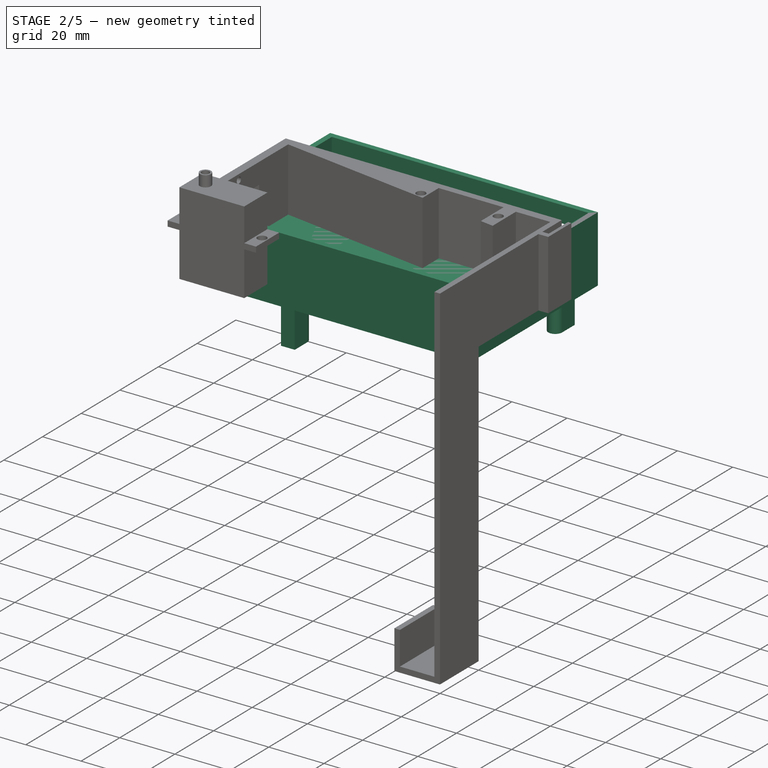
[diagram: stage 2 of 5 — iso view after this stage's code; geometry added in this stage tinted green]
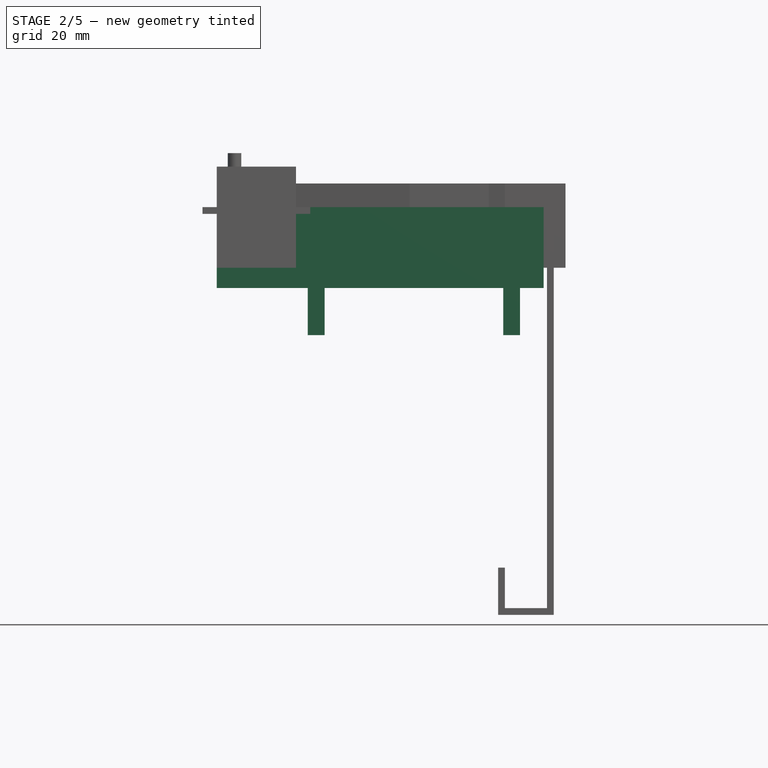
[diagram: stage 2 of 5 — front view after this stage's code; geometry added in this stage tinted green]
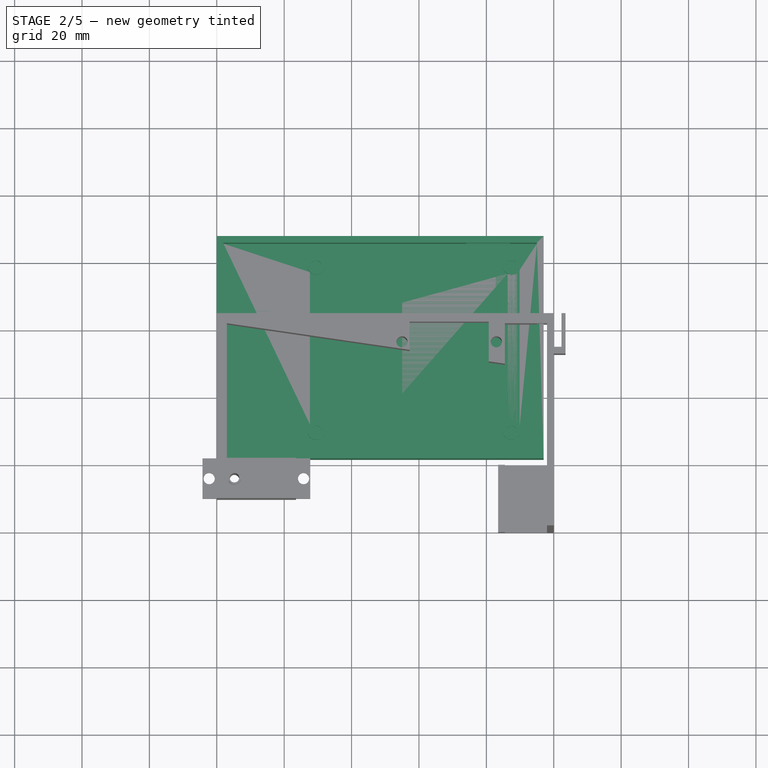
[diagram: stage 2 of 5 — top view after this stage's code; geometry added in this stage tinted green]
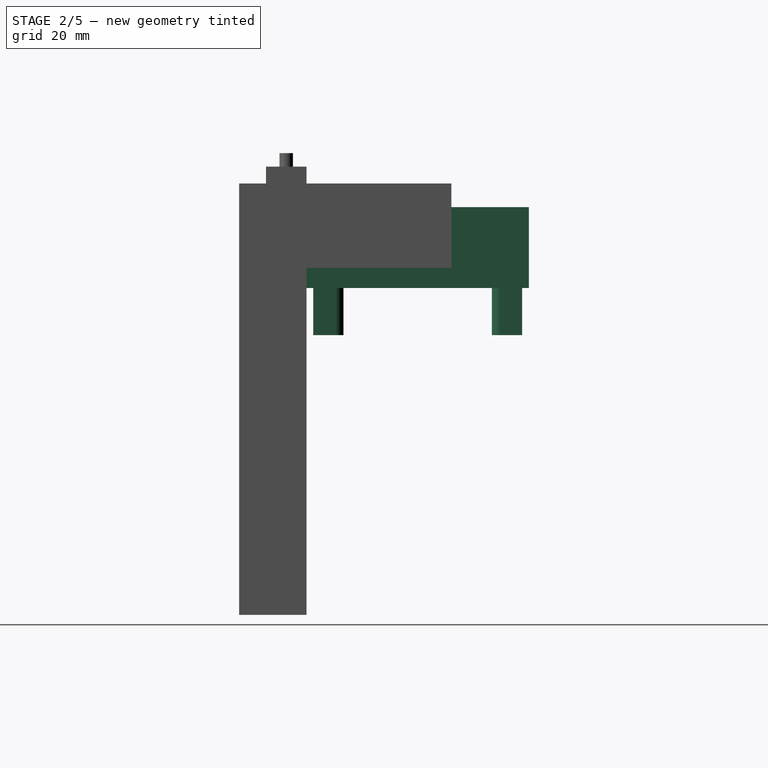
[diagram: stage 2 of 5 — right view after this stage's code; geometry added in this stage tinted green]
FEATURE [Sketcher::SketchObject] Sketch006  label="HB_BaseSketch"
  FullyConstrained = true
  MapMode = 5
  Support = -> [XY_Plane004]
  expr: Constraints[9] = <<RaspiProps>>.Width + <<RaspiProps>>.PortsMargin + <<RaspiProps>>.SdcardMargin + 6mm
  expr: Constraints[22] = <<RaspiProps>>.Width - <<RaspiProps>>.HoleDistanceTop - <<RaspiProps>>.HoleDistanceBottom
  expr: Constraints[10] = <<RaspiProps>>.Height + 10mm
  expr: Constraints[21] = <<RaspiProps>>.Height - <<RaspiProps>>.HoleDistanceSide * 2
  expr: Constraints[30] = <<RaspiProps>>.HoleDistanceSide + 5mm
  expr: Constraints[31] = <<RaspiProps>>.HoleRadius
  expr: Constraints[29] = <<RaspiProps>>.HoleDistanceTop + <<RaspiProps>>.PortsMargin + 3mm
  sketch-geometry (21):
    g0: LineSegment StartX=0 StartY=0 StartZ=0 EndX=97 EndY=0 EndZ=0
    g1: LineSegment StartX=97 StartY=0 StartZ=0 EndX=97 EndY=66 EndZ=0
    g2: LineSegment StartX=97 StartY=66 StartZ=0 EndX=0 EndY=66 EndZ=0
    g3: LineSegment StartX=0 StartY=66 StartZ=0 EndX=0 EndY=0 EndZ=0
    g4: Circle CenterX=87.5 CenterY=57.5 CenterZ=0 NormalX=0 NormalY=0 NormalZ=1 AngleXU=0 Radius=1.5
    g5: Circle CenterX=87.5 CenterY=8.5 CenterZ=0 NormalX=0 NormalY=0 NormalZ=1 AngleXU=0 Radius=1.5
    g6: Circle CenterX=29.5 CenterY=57.5 CenterZ=0 NormalX=0 NormalY=0 NormalZ=1 AngleXU=0 Radius=1.5
    g7: Circle CenterX=29.5 CenterY=8.5 CenterZ=0 NormalX=0 NormalY=0 NormalZ=1 AngleXU=0 Radius=1.5
    g8: LineSegment StartX=29.5 StartY=57.5 StartZ=0 EndX=87.5 EndY=57.5 EndZ=0
    g9: LineSegment StartX=87.5 StartY=57.5 StartZ=0 EndX=87.5 EndY=8.5 EndZ=0
    g10: LineSegment StartX=29.5 StartY=57.5 StartZ=0 EndX=29.5 EndY=8.5 EndZ=0
    g11: LineSegment StartX=87.5 StartY=57.5 StartZ=0 EndX=97 EndY=57.5 EndZ=0
    g12: LineSegment StartX=87.5 StartY=57.5 StartZ=0 EndX=87.5 EndY=66 EndZ=0
    g13: LineSegment StartX=42 StartY=46.5 StartZ=0 EndX=55 EndY=46.5 EndZ=0
    g14: LineSegment StartX=55 StartY=46.5 StartZ=0 EndX=55 EndY=19.5 EndZ=0
    g15: LineSegment StartX=55 StartY=19.5 StartZ=0 EndX=42 EndY=19.5 EndZ=0
    g16: LineSegment StartX=42 StartY=19.5 StartZ=0 EndX=42 EndY=46.5 EndZ=0
    g17: LineSegment StartX=0 StartY=66 StartZ=0 EndX=42 EndY=46.5 EndZ=0
    g18: LineSegment StartX=42 StartY=19.5 StartZ=0 EndX=0 EndY=0 EndZ=0
    g19: LineSegment StartX=55 StartY=19.5 StartZ=0 EndX=97 EndY=0 EndZ=0
    g20: LineSegment StartX=55 StartY=46.5 StartZ=0 EndX=97 EndY=66 EndZ=0
  constraints (55):
    c: Coincident(g0,g1)
    c: Coincident(g1,g2)
    c: Coincident(g2,g3)
    c: Coincident(g3,g0)
    c: Horizontal(g0)
    c: Horizontal(g2)
    c: Vertical(g1)
    c: Vertical(g3)
    c: Coincident(g0,g-1)
    c: Distance(g2) = 97
    c: Distance(g1) = 66
    c: Coincident(g8,g6)
    c: Coincident(g8,g4)
    c: Horizontal(g8)
    c: Coincident(g9,g4)
    c: Coincident(g9,g5)
    c: Vertical(g9)
    c: Coincident(g10,g6)
    c: Coincident(g10,g7)
    c: Vertical(g10)
    c: Equal(g10,g9)
    c: Distance(g9) = 49
    c: Distance(g8) = 58
    c: Coincident(g11,g4)
    c: PointOnObject(g11,g1)
    c: Horizontal(g11)
    c: Coincident(g12,g4)
    c: PointOnObject(g12,g2)
    c: Vertical(g12)
    c: Distance(g11) = 9.5
    c: Distance(g12) = 8.5
    c: Radius(g6) = 1.5
    c: Equal(g6,g4)
    c: Equal(g6,g5)
    c: Equal(g6,g7)
    c: Coincident(g13,g14)
    c: Coincident(g14,g15)
    c: Coincident(g15,g16)
    c: Coincident(g16,g13)
    c: Horizontal(g13)
    c: Horizontal(g15)
    c: Vertical(g14)
    c: Vertical(g16)
    c: Distance(g13) = 13
    c: Distance(g16) = 27
    c: Coincident(g17,g2)
    c: Coincident(g17,g13)
    c: Coincident(g18,g15)
    c: Coincident(g18,g0)
    c: Coincident(g19,g14)
    c: Coincident(g19,g0)
    c: Coincident(g20,g13)
    c: Coincident(g20,g1)
    c: Equal(g17,g20)
    c: Equal(g20,g19)
FEATURE [PartDesign::Pad] Pad004  label="HB_Base"
  Direction = (1,1,1)
  Length = 2
  Length2 = 100
  Profile = -> Sketch006
  Type = 0
FEATURE [Sketcher::SketchObject] Sketch007  label="HB_WallsSketch"
  FullyConstrained = true
  MapMode = 5
  Support = -> [XY_Plane004]
  expr: Constraints[9] = <<RaspiProps>>.Width + <<RaspiProps>>.PortsMargin + <<RaspiProps>>.SdcardMargin + 6mm
  expr: Constraints[10] = <<RaspiProps>>.Height + 10mm
  expr: Constraints[19] = <<RaspiProps>>.Height + 6mm
  expr: Constraints[20] = <<RaspiProps>>.Width + <<RaspiProps>>.PortsMargin + <<RaspiProps>>.SdcardMargin + 2mm
  sketch-geometry (12):
    g0: LineSegment StartX=0 StartY=66 StartZ=0 EndX=97 EndY=66 EndZ=0
    g1: LineSegment StartX=97 StartY=66 StartZ=0 EndX=97 EndY=0 EndZ=0
    g2: LineSegment StartX=97 StartY=0 StartZ=0 EndX=0 EndY=0 EndZ=0
    g3: LineSegment StartX=0 StartY=0 StartZ=0 EndX=0 EndY=66 EndZ=0
    g4: LineSegment StartX=2 StartY=64 StartZ=0 EndX=95 EndY=64 EndZ=0
    g5: LineSegment StartX=95 StartY=64 StartZ=0 EndX=95 EndY=2 EndZ=0
    g6: LineSegment StartX=95 StartY=2 StartZ=0 EndX=2 EndY=2 EndZ=0
    g7: LineSegment StartX=2 StartY=2 StartZ=0 EndX=2 EndY=64 EndZ=0
    g8: LineSegment StartX=95 StartY=64 StartZ=0 EndX=97 EndY=64 EndZ=0
    g9: LineSegment StartX=95 StartY=64 StartZ=0 EndX=95 EndY=66 EndZ=0
    g10: LineSegment StartX=2 StartY=2 StartZ=0 EndX=2 EndY=0 EndZ=0
    g11: LineSegment StartX=2 StartY=2 StartZ=0 EndX=0 EndY=2 EndZ=0
  constraints (35):
    c: Coincident(g0,g1)
    c: Coincident(g1,g2)
    c: Coincident(g2,g3)
    c: Coincident(g3,g0)
    c: Horizontal(g0)
    c: Horizontal(g2)
    c: Vertical(g1)
    c: Vertical(g3)
    c: Coincident(g2,g-1)
    c: Distance(g0) = 97
    c: Distance(g3) = 66
    c: Coincident(g4,g5)
    c: Coincident(g5,g6)
    c: Coincident(g6,g7)
    c: Coincident(g7,g4)
    c: Horizontal(g4)
    c: Horizontal(g6)
    c: Vertical(g5)
    c: Vertical(g7)
    c: Distance(g5) = 62
    c: Distance(g4) = 93
    c: Coincident(g8,g4)
    c: PointOnObject(g8,g1)
    c: Horizontal(g8)
    c: Coincident(g9,g4)
    c: PointOnObject(g9,g0)
    c: Vertical(g9)
    c: Coincident(g10,g6)
    c: PointOnObject(g10,g2)
    c: Vertical(g10)
    c: Coincident(g11,g6)
    c: PointOnObject(g11,g3)
    c: Horizontal(g11)
    c: Equal(g11,g10)
    c: Equal(g10,g8)
FEATURE [PartDesign::Pad] Pad005  label="HB_Walls"
  BaseFeature = -> Pad004
  Direction = (1,1,1)
  Length = 18
  Length2 = 100
  Profile = -> Sketch007
  Type = 0
FEATURE [Sketcher::SketchObject] Sketch008  label="HB_HoleSpacersSketch"
  FullyConstrained = false
  MapMode = 5
  Support = -> [XY_Plane004]
  expr: Constraints[11] = 3mm + <<RaspiProps>>.PortsMargin
  expr: Constraints[28] = <<RaspiProps>>.HoleDistanceTop
  expr: Constraints[29] = <<RaspiProps>>.HoleDistanceSide
  expr: Constraints[26] = <<RaspiProps>>.Width - <<RaspiProps>>.HoleDistanceBottom - <<RaspiProps>>.HoleDistanceTop
  expr: Constraints[12] = <<RaspiProps>>.HoleRadius
  expr: Constraints[27] = <<RaspiProps>>.Height - <<RaspiProps>>.HoleDistanceSide * 2
  expr: Constraints[9] = <<RaspiProps>>.Height
  expr: Constraints[8] = <<RaspiProps>>.Width
  sketch-geometry (19):
    g0: LineSegment StartX=6 StartY=61 StartZ=0 EndX=91 EndY=61 EndZ=0
    g1: LineSegment StartX=91 StartY=61 StartZ=0 EndX=91 EndY=5 EndZ=0
    g2: LineSegment StartX=91 StartY=5 StartZ=0 EndX=6 EndY=5 EndZ=0
    g3: LineSegment StartX=6 StartY=5 StartZ=0 EndX=6 EndY=61 EndZ=0
    g4: Circle CenterX=87.5 CenterY=57.5 CenterZ=0 NormalX=0 NormalY=0 NormalZ=1 AngleXU=0 Radius=1.5
    g5: Circle CenterX=87.5 CenterY=8.5 CenterZ=0 NormalX=0 NormalY=0 NormalZ=1 AngleXU=0 Radius=1.5
    g6: Circle CenterX=29.5 CenterY=57.5 CenterZ=0 NormalX=0 NormalY=0 NormalZ=1 AngleXU=0 Radius=1.5
    g7: Circle CenterX=29.5 CenterY=8.5 CenterZ=0 NormalX=0 NormalY=0 NormalZ=1 AngleXU=0 Radius=1.5
    g8: LineSegment StartX=29.5 StartY=57.5 StartZ=0 EndX=87.5 EndY=57.5 EndZ=0
    g9: LineSegment StartX=87.5 StartY=57.5 StartZ=0 EndX=87.5 EndY=8.5 EndZ=0
    g10: LineSegment StartX=29.5 StartY=8.5 StartZ=0 EndX=87.5 EndY=8.5 EndZ=0
    g11: Circle CenterX=29.5 CenterY=57.5 CenterZ=0 NormalX=0 NormalY=0 NormalZ=1 AngleXU=0 Radius=2.7
    g12: Circle CenterX=87.5 CenterY=57.5 CenterZ=0 NormalX=0 NormalY=0 NormalZ=1 AngleXU=0 Radius=2.7
    g13: Circle CenterX=87.5 CenterY=8.5 CenterZ=0 NormalX=0 NormalY=0 NormalZ=1 AngleXU=0 Radius=2.7
    g14: Circle CenterX=29.5 CenterY=8.5 CenterZ=0 NormalX=0 NormalY=0 NormalZ=1 AngleXU=0 Radius=2.7
    g15: LineSegment StartX=28.3063 StartY=9.40833 StartZ=0 EndX=27.3513 EndY=10.135 EndZ=0
    g16: LineSegment StartX=86.2416 StartY=9.31631 StartZ=0 EndX=85.2348 EndY=9.96936 EndZ=0
    g17: LineSegment StartX=88.8293 StartY=56.805 StartZ=0 EndX=89.8927 EndY=56.2491 EndZ=0
    g18: LineSegment StartX=28.2356 StartY=56.6929 StartZ=0 EndX=27.2241 EndY=56.0473 EndZ=0
  constraints (50):
    c: Coincident(g0,g1)
    c: Coincident(g1,g2)
    c: Coincident(g2,g3)
    c: Coincident(g3,g0)
    c: Horizontal(g0)
    c: Horizontal(g2)
    c: Vertical(g1)
    c: Vertical(g3)
    c: Distance(g0) = 85
    c: Distance(g1) = 56
    c: DistanceY(g-1,g2) = 5
    c: DistanceX(g-1,g2) = 6
    c: Radius(g6) = 1.5
    c: Equal(g6,g4)
    c: Equal(g6,g5)
    c: Equal(g6,g7)
    c: Coincident(g8,g6)
    c: Coincident(g8,g4)
    c: Horizontal(g8)
    c: Coincident(g9,g4)
    c: Coincident(g9,g5)
    c: Vertical(g9)
    c: Coincident(g10,g7)
    c: Coincident(g10,g5)
    c: Horizontal(g10)
    c: Equal(g10,g8)
    c: Distance(g8) = 58
    c: Distance(g9) = 49
    c: DistanceX(g4,g0) = 3.5
    c: DistanceY(g4,g0) = 3.5
    c: Coincident(g11,g6)
    c: Coincident(g12,g4)
    c: Coincident(g13,g5)
    c: Coincident(g14,g7)
    c: PointOnObject(g15,g7)
    c: PointOnObject(g15,g14)
    c: Perpendicular(g7,g15)
    c: PointOnObject(g16,g5)
    c: PointOnObject(g16,g13)
    c: PointOnObject(g17,g4)
    c: PointOnObject(g17,g12)
    c: PointOnObject(g18,g6)
    c: PointOnObject(g18,g11)
    c: Perpendicular(g6,g18)
    c: Perpendicular(g4,g17)
    c: Perpendicular(g5,g16)
    c: Equal(g18,g17)
    c: Equal(g17,g16)
    c: Equal(g16,g15)
    c: Distance(g18) = 1.2
FEATURE [PartDesign::Pad] Pad006  label="HB_HoleSpacers"
  BaseFeature = -> Pad005
  Direction = (1,1,1)
  Length = 4
  Length2 = 100
  Profile = -> Sketch008
  Type = 0
FEATURE [Sketcher::SketchObject] Sketch012  label="HB_UsbcCutoutSketch"
  AttachmentOffset = pos=(74,4,-66) rot=(0,0,1;0rad)
  FullyConstrained = true
  MapMode = 5
  Placement = pos=(74,66,4) rot=(1,0,0;1.5708rad)
  Support = -> [XZ_Plane004]
  expr: .AttachmentOffset.Base.z = -<<RaspiProps>>.Height - 10mm
  sketch-geometry (4):
    g0: LineSegment StartX=0 StartY=0 StartZ=0 EndX=13 EndY=0 EndZ=0
    g1: LineSegment StartX=13 StartY=0 StartZ=0 EndX=13 EndY=8 EndZ=0
    g2: LineSegment StartX=13 StartY=8 StartZ=0 EndX=0 EndY=8 EndZ=0
    g3: LineSegment StartX=0 StartY=8 StartZ=0 EndX=0 EndY=0 EndZ=0
  constraints (11):
    c: Coincident(g0,g1)
    c: Coincident(g1,g2)
    c: Coincident(g2,g3)
    c: Coincident(g3,g0)
    c: Horizontal(g0)
    c: Horizontal(g2)
    c: Vertical(g1)
    c: Vertical(g3)
    c: Coincident(g0,g-1)
    c: Distance(g2) = 13
    c: Distance(g1) = 8
FEATURE [PartDesign::Pocket] Pocket001  label="HB_UsbcCutout"
  BaseFeature = -> Pad006
  Length = 2
  Length2 = 100
  Profile = -> Sketch012
  Reversed = true
  Type = 0
FEATURE [PartDesign::AdditiveBox] Box  label="HT_Base"
  AttacherType = Attacher::AttachEngine3D
  Height = 2
  Length = 97
  Width = 66
  expr: Length = <<RaspiProps>>.Width + <<RaspiProps>>.PortsMargin + <<RaspiProps>>.SdcardMargin + 6mm
  expr: Width = <<RaspiProps>>.Height + 10mm
FEATURE [PartDesign::Pad] Pad012  label="HT_Walls"
  BaseFeature = -> Box
  Direction = (1,1,1)
  Length = 6
  Length2 = 100
  Profile = -> Sketch015
  Reversed = true
  Type = 0
FEATURE [PartDesign::Pad] Pad013  label="HT_HoleSpacers"
  BaseFeature = -> Pad012
  Direction = (1,1,1)
  Length = 20
  Length2 = 100
  Profile = -> Sketch016
  Reversed = true
  Type = 0
FEATURE [PartDesign::CoordinateSystem] HT_DisplayClipInside
  AttacherType = Attacher::AttachEngine3D
  MapMode = 45
  Placement = pos=(58.5,48.5,2) rot=(0,0.707107,0.707107;3.14159rad)
  Support = -> [Pocket004]
FEATURE [PartDesign::Body] HousingTop  label="RaspiHousingTop"
  Group = -> [Box,LCS_0001,Sketch014,Sketch015,Pad012,Sketch016,Pad013,Pocket004,HB_TopRightScrewHole001,HT_ArmClipInside,HT_DisplayClipInside]
  Origin = -> Origin005
  Tip = -> Pocket004
FEATURE [PartDesign::CoordinateSystem] DC_HousingSide
  AttacherType = Attacher::AttachEngine3D
  MapMode = 45
  Placement = pos=(3.3,1,12.5) rot=(0,0,1;0rad)
  Support = -> [Pad018]
FEATURE [App::Link] DisplayClip001
  AssemblyType = Asm4EE
  AttachedBy = #DC_HousingSide
  AttachedTo = HousingTop001#HT_DisplayClipInside
  AttachmentOffset = pos=(0,0,0) rot=(0.707107,0.707107,0;3.14159rad)
  LinkPlacement = pos=(59.5,61,24.1) rot=(-0.57735,0.57735,-0.57735;4.18879rad)
  LinkedObject = -> DisplayClip
  Placement = pos=(59.5,61,24.1) rot=(-0.57735,0.57735,-0.57735;4.18879rad)
  expr: Placement = HousingTop001.Placement * HT_DisplayClipInside.Placement * AttachmentOffset * DC_HousingSide.Placement ^ -1
FEATURE [PartDesign::CoordinateSystem] DC_DisplaySide
  AttacherType = Attacher::AttachEngine3D
  MapMode = 45
  Placement = pos=(4.3,10,12.5) rot=(0,0,1;0rad)
  Support = -> [Pad018]
FEATURE [PartDesign::Body] DisplayClip
  Group = -> [LCS_0005,Sketch025,Pad018,DC_HousingSide,DC_DisplaySide]
  Origin = -> Origin009
  Tip = -> Pad018
FEATURE [PartDesign::CoordinateSystem] DHB_Clip
  AttacherType = Attacher::AttachEngine3D
  MapMode = 45
  Placement = pos=(43,0,0) rot=(0.57735,0.57735,0.57735;2.0944rad)
  Support = -> [Box009]
FEATURE [App::Link] DisplayHousingBottom001
  AssemblyType = Asm4EE
  AttachedBy = #DHB_Clip
  AttachedTo = DisplayClip001#DC_DisplaySide
  AttachmentOffset = pos=(0,0,0) rot=(0,0,1;4.71239rad)
  LinkPlacement = pos=(49.5,91.5,28.4) rot=(0,0,-1;1.5708rad)
  LinkedObject = -> DisplayHousingBottom
  Placement = pos=(49.5,91.5,28.4) rot=(0,0,-1;1.5708rad)
  expr: Placement = DisplayClip001.Placement * DC_DisplaySide.Placement * AttachmentOffset * DHB_Clip.Placement ^ -1
FEATURE [PartDesign::CoordinateSystem] DHB_TopRightScrewHole
  AttacherType = Attacher::AttachEngine3D
  MapMode = 11
  Placement = pos=(80.75,36.35,14) rot=(0.707107,-0.707107,0;3.14159rad)
  Support = -> [Box009]
FEATURE [PartDesign::Body] DisplayHousingBottom
  Group = -> [LCS_0003,Box006,Box007,Sketch020,Pad016,Sketch021,Pocket003,Box008,Box009,DHB_Clip,DHB_TopRightScrewHole]
  Origin = -> Origin007
  Tip = -> Box009
FEATURE [PartDesign::CoordinateSystem] DP_TopRightScrewHoleBot
  AttacherType = Attacher::AttachEngine3D
  MapMode = 11
  Placement = pos=(77.75,33.35,0) rot=(0,0,1;1.5708rad)
  Support = -> [Pocket002]
FEATURE [PartDesign::CoordinateSystem] DP_TopRightScrewHoleTop
  AttacherType = Attacher::AttachEngine3D
  MapMode = 11
  Placement = pos=(77.75,33.35,1.6) rot=(0.707107,-0.707107,0;3.14159rad)
  Support = -> [Pocket002]
FEATURE [PartDesign::Body] Display
  Group = -> [LCS_0002,Box004,Box005,Sketch019,Pocket002,DP_TopRightScrewHoleBot,DP_TopRightScrewHoleTop]
  Origin = -> Origin006
  Tip = -> Pocket002
FEATURE [App::Link] Display001
  AssemblyType = Asm4EE
  AttachedBy = #DP_TopRightScrewHoleBot
  AttachedTo = DisplayHousingBottom001#DHB_TopRightScrewHole
  AttachmentOffset = pos=(0,0,0) rot=(0,1,0;3.14159rad)
  LinkPlacement = pos=(52.5,88.5,42.4) rot=(0,0,-1;1.5708rad)
  LinkedObject = -> Display
  Placement = pos=(52.5,88.5,42.4) rot=(0,0,-1;1.5708rad)
  expr: Placement = DisplayHousingBottom001.Placement * DHB_TopRightScrewHole.Placement * AttachmentOffset * DP_TopRightScrewHoleBot.Placement ^ -1
FEATURE [PartDesign::CoordinateSystem] DHT_TopRightScrewHole
  AttacherType = Attacher::AttachEngine3D
  MapMode = 11
  Placement = pos=(80.75,5.85,8) rot=(0.707107,-0.707107,0;3.14159rad)
  Support = -> [Pocket006]
FEATURE [PartDesign::Body] DisplayHousingTop
  Group = -> [LCS_0004,Box010,Box011,Sketch022,Pad017,Sketch023,Pocket005,Sketch024,Pocket006,DHT_TopRightScrewHole]
  Origin = -> Origin008
  Tip = -> Pocket006
FEATURE [App::Link] DisplayHousingTop001
  AssemblyType = Asm4EE
  AttachedBy = #DHT_TopRightScrewHole
  AttachedTo = Display001#DP_TopRightScrewHoleTop
  AttachmentOffset = pos=(0,0,0) rot=(0,1,0;3.14159rad)
  LinkPlacement = pos=(91.7,91.5,52) rot=(-0.707107,0.707107,0;3.14159rad)
  LinkedObject = -> DisplayHousingTop
  Placement = pos=(91.7,91.5,52) rot=(-0.707107,0.707107,0;3.14159rad)
  expr: Placement = Display001.Placement * DP_TopRightScrewHoleTop.Placement * AttachmentOffset * DHT_TopRightScrewHole.Placement ^ -1
FEATURE [Sketcher::SketchObject] Sketch026  label="HB_BotUsbCutoutSketch"
  FullyConstrained = true
  MapMode = 5
  Placement = pos=(0,0,0) rot=(0.57735,0.57735,0.57735;2.0944rad)
  Support = -> [YZ_Plane004]
  sketch-geometry (4):
    g0: LineSegment StartX=22 StartY=18 StartZ=0 EndX=42 EndY=18 EndZ=0
    g1: LineSegment StartX=42 StartY=18 StartZ=0 EndX=42 EndY=3 EndZ=0
    g2: LineSegment StartX=42 StartY=3 StartZ=0 EndX=22 EndY=3 EndZ=0
    g3: LineSegment StartX=22 StartY=3 StartZ=0 EndX=22 EndY=18 EndZ=0
  constraints (12):
    c: Coincident(g0,g1)
    c: Coincident(g1,g2)
    c: Coincident(g2,g3)
    c: Coincident(g3,g0)
    c: Horizontal(g0)
    c: Horizontal(g2)
    c: Vertical(g1)
    c: Vertical(g3)
    c: Distance(g0) = 20
    c: Distance(g1) = 15
    c: DistanceX(g-1,g2) = 22
    c: DistanceY(g-1,g2) = 3
FEATURE [PartDesign::Pocket] Pocket007  label="HB_BotUsbCutout"
  BaseFeature = -> Pocket001
  Length = 2
  Length2 = 100
  Profile = -> Sketch026
  Reversed = true
  Type = 0
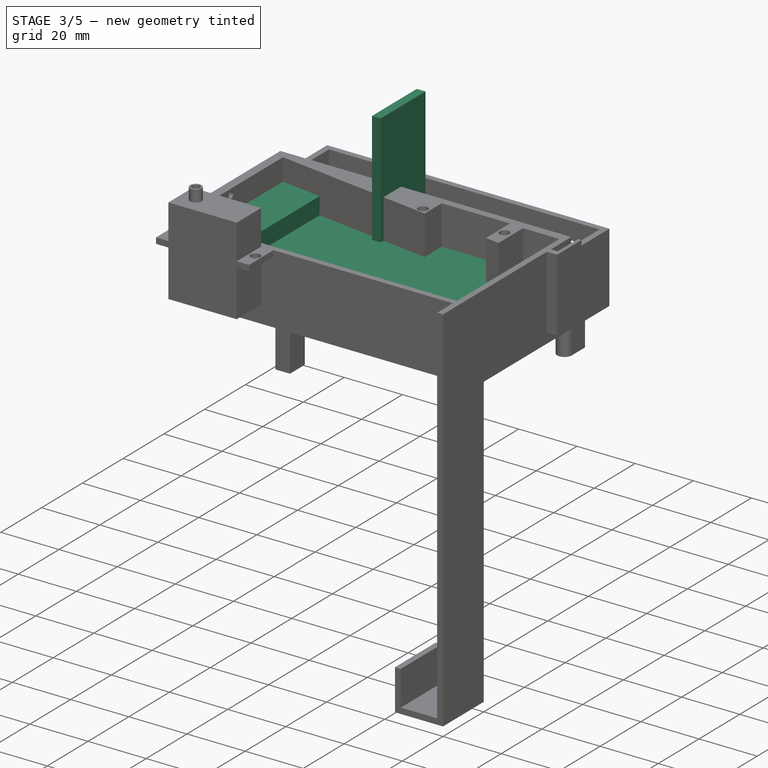
[diagram: stage 3 of 5 — iso view after this stage's code; geometry added in this stage tinted green]
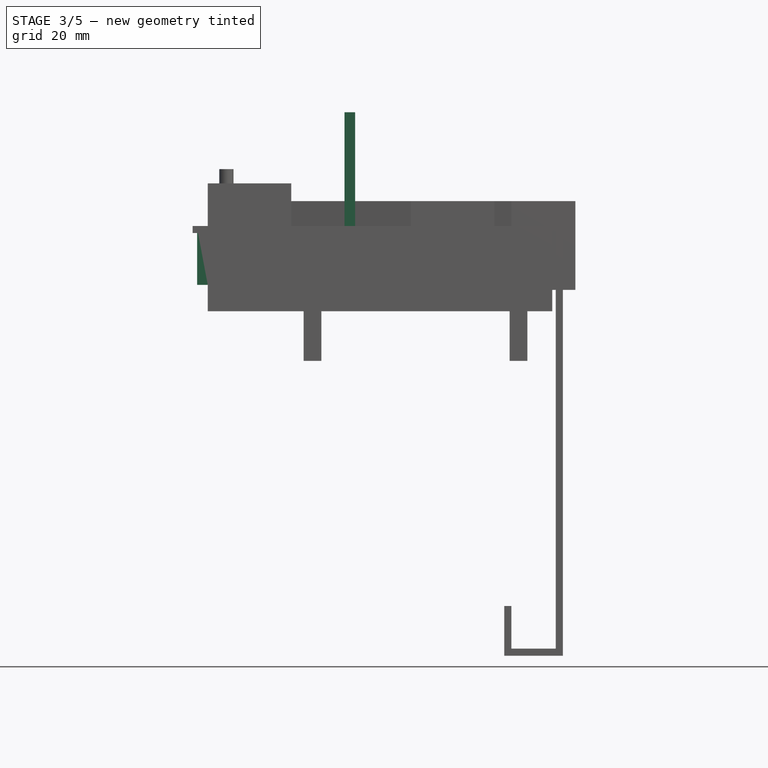
[diagram: stage 3 of 5 — front view after this stage's code; geometry added in this stage tinted green]
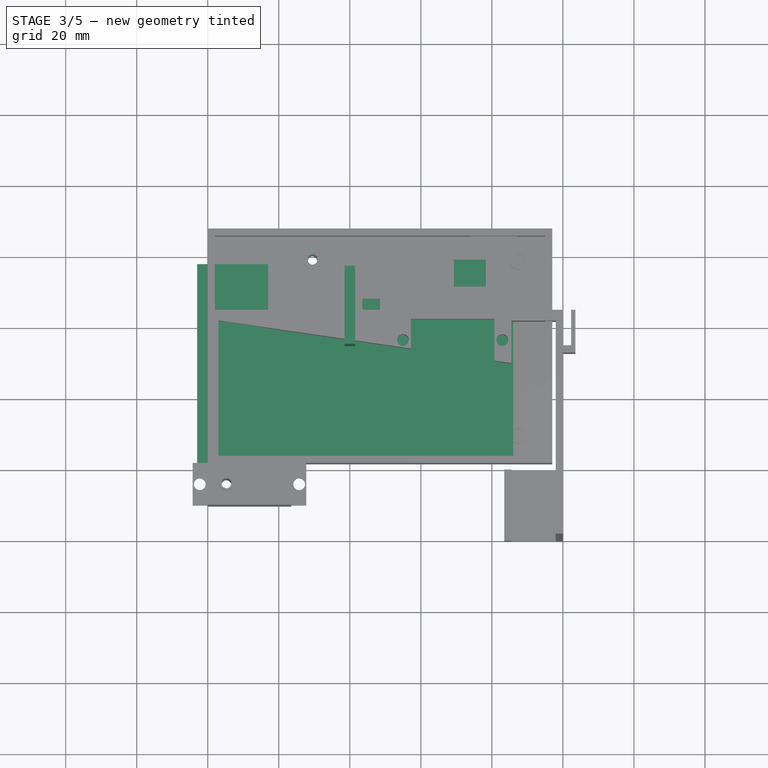
[diagram: stage 3 of 5 — top view after this stage's code; geometry added in this stage tinted green]
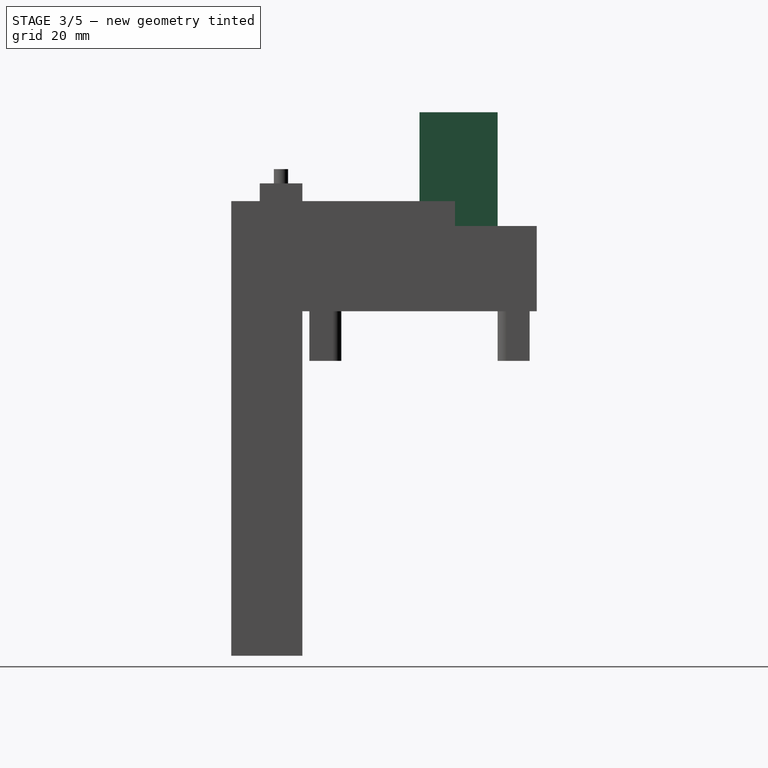
[diagram: stage 3 of 5 — right view after this stage's code; geometry added in this stage tinted green]
FEATURE [Spreadsheet::Sheet] Spreadsheet001  label="RaspiProps"
  cells = A2=HoleRadius; B2(HoleRadius)==1.5mm; A3=Width; B3(Width)==85mm; A4=Height; B4(Height)==56mm; A5=HoleDistanceTop; B5(HoleDistanceTop)==3.5mm; A6=HoleDistanceSide; B6(HoleDistanceSide)==3.5mm; A7=HoleDistanceBottom; B7(HoleDistanceBottom)==23.5mm; A8=ConnectorHeigth; B8(ConnectorHeigth)==18mm; A9=PortsMargin; B9(PortsMargin)==3mm; A10=SdcardMargin; B10(SdcardMargin)==3mm; A11=CamCableOffsetX; B11(CamCableOffsetX)==45mm; A12=CamCableOffsetY; B12(CamCableOffsetY)==1mm; A13=CamCableHeight; B13(CamCableHeight)==1mm; A14=CamCableWidth; B14(CamCableWidth)==23mm
FEATURE [Sketcher::SketchObject] Sketch005  label="RPI_BaseSketch"
  FullyConstrained = true
  MapMode = 5
  Support = -> [XY_Plane003]
  expr: Constraints[10] = <<RaspiProps>>.Width
  expr: Constraints[9] = <<RaspiProps>>.Height
  expr: Constraints[30] = <<RaspiProps>>.Width - <<RaspiProps>>.HoleDistanceTop - <<RaspiProps>>.HoleDistanceBottom
  expr: Constraints[31] = <<RaspiProps>>.Height - <<RaspiProps>>.HoleDistanceSide * 2
  expr: Constraints[32] = <<RaspiProps>>.HoleDistanceTop
  expr: Constraints[33] = <<RaspiProps>>.HoleRadius
  sketch-geometry (14):
    g0: LineSegment StartX=0 StartY=0 StartZ=0 EndX=85 EndY=0 EndZ=0
    g1: LineSegment StartX=85 StartY=0 StartZ=0 EndX=85 EndY=56 EndZ=0
    g2: LineSegment StartX=85 StartY=56 StartZ=0 EndX=0 EndY=56 EndZ=0
    g3: LineSegment StartX=0 StartY=56 StartZ=0 EndX=0 EndY=0 EndZ=0
    g4: Circle CenterX=23.5 CenterY=52.5 CenterZ=0 NormalX=0 NormalY=0 NormalZ=1 AngleXU=0 Radius=1.5
    g5: Circle CenterX=23.5 CenterY=3.5 CenterZ=0 NormalX=0 NormalY=0 NormalZ=1 AngleXU=0 Radius=1.5
    g6: Circle CenterX=81.5 CenterY=52.5 CenterZ=0 NormalX=0 NormalY=0 NormalZ=1 AngleXU=0 Radius=1.5
    g7: Circle CenterX=81.5 CenterY=3.5 CenterZ=0 NormalX=0 NormalY=0 NormalZ=1 AngleXU=0 Radius=1.5
    g8: LineSegment StartX=0 StartY=28 StartZ=0 EndX=85 EndY=28 EndZ=0
    g9: LineSegment StartX=81.5 StartY=52.5 StartZ=0 EndX=85 EndY=52.5 EndZ=0
    g10: LineSegment StartX=81.5 StartY=52.5 StartZ=0 EndX=81.5 EndY=56 EndZ=0
    g11: LineSegment StartX=23.5 StartY=52.5 StartZ=0 EndX=23.5 EndY=56 EndZ=0
    g12: LineSegment StartX=81.5 StartY=52.5 StartZ=0 EndX=81.5 EndY=3.5 EndZ=0
    g13: LineSegment StartX=81.5 StartY=52.5 StartZ=0 EndX=23.5 EndY=52.5 EndZ=0
  constraints (37):
    c: Coincident(g0,g1)
    c: Coincident(g1,g2)
    c: Coincident(g2,g3)
    c: Coincident(g3,g0)
    c: Horizontal(g0)
    c: Horizontal(g2)
    c: Vertical(g1)
    c: Vertical(g3)
    c: Coincident(g0,g-1)
    c: Distance(g1) = 56
    c: Distance(g0) = 85
    c: PointOnObject(g8,g3)
    c: PointOnObject(g8,g1)
    c: Symmetric(g2,g0,g8)
    c: Symmetric(g6,g7,g8)
    c: Symmetric(g4,g5,g8)
    c: Coincident(g9,g6)
    c: PointOnObject(g9,g1)
    c: Horizontal(g9)
    c: Coincident(g10,g6)
    c: PointOnObject(g10,g2)
    c: Vertical(g10)
    c: Coincident(g11,g4)
    c: PointOnObject(g11,g2)
    c: Vertical(g11)
    c: Coincident(g12,g6)
    c: Coincident(g12,g7)
    c: Coincident(g13,g6)
    c: Coincident(g13,g4)
    c: Horizontal(g13)
    c: Distance(g13) = 58
    c: Distance(g12) = 49
    c: Distance(g9) = 3.5
    c: Radius(g4) = 1.5
    c: Equal(g4,g6)
    c: Equal(g4,g7)
    c: Equal(g4,g5)
FEATURE [PartDesign::Pad] Pad003  label="RPI_Base"
  Direction = (1,1,1)
  Length = 1.4
  Length2 = 100
  Profile = -> Sketch005
  Type = 0
FEATURE [PartDesign::CoordinateSystem] RPI_TopRightScrewHole  label="RPI_TopRightScrewHoleBottom"
  AttacherType = Attacher::AttachEngine3D
  MapMode = 11
  Placement = pos=(81.5,52.5,0) rot=(0,0,1;1.5708rad)
  Support = -> [Sketch005]
FEATURE [PartDesign::CoordinateSystem] HB_TopRightScrewHole
  AttacherType = Attacher::AttachEngine3D
  AttachmentOffset = pos=(0,0,4) rot=(0,0,1;0rad)
  MapMode = 11
  Placement = pos=(87.5,57.5,4) rot=(0,0,1;1.5708rad)
  Support = -> [Sketch008]
FEATURE [PartDesign::CoordinateSystem] LCS_Origin001
  AttacherType = Attacher::AttachEngine3D
FEATURE [App::Link] HousingBottom001
  AssemblyType = Asm4EE
  AttachedBy = #LCS_Origin001
  AttachedTo = Parent Assembly#LCS_Origin
  LinkedObject = -> HousingBottom
  expr: Placement = LCS_Origin.Placement * AttachmentOffset * LCS_Origin001.Placement ^ -1
FEATURE [App::Link] Raspi001
  AssemblyType = Asm4EE
  AttachedBy = #RPI_TopRightScrewHole
  AttachedTo = HousingBottom001#HB_TopRightScrewHole
  LinkPlacement = pos=(6,5,4) rot=(0,0,1;0rad)
  LinkedObject = -> Raspi
  Placement = pos=(6,5,4) rot=(0,0,1;0rad)
  expr: Placement = HousingBottom001.Placement * HB_TopRightScrewHole.Placement * AttachmentOffset * RPI_TopRightScrewHole.Placement ^ -1
FEATURE [Sketcher::SketchObject] Sketch009  label="RPI_PortsSketch"
  AttachmentOffset = pos=(0,0,1.4) rot=(0,0,1;0rad)
  FullyConstrained = true
  MapMode = 5
  Placement = pos=(0,0,1.4) rot=(0,0,1;0rad)
  Support = -> [XY_Plane003]
  expr: .AttachmentOffset.Base.z = <<RPI_Base>>.Length
  expr: Constraints[11] = <<RaspiProps>>.PortsMargin
  expr: Constraints[10] = <<RaspiProps>>.Height
  sketch-geometry (4):
    g0: LineSegment StartX=-3 StartY=56 StartZ=0 EndX=17 EndY=56 EndZ=0
    g1: LineSegment StartX=17 StartY=56 StartZ=0 EndX=17 EndY=0 EndZ=0
    g2: LineSegment StartX=17 StartY=0 StartZ=0 EndX=-3 EndY=0 EndZ=0
    g3: LineSegment StartX=-3 StartY=0 StartZ=0 EndX=-3 EndY=56 EndZ=0
  constraints (12):
    c: Coincident(g0,g1)
    c: Coincident(g1,g2)
    c: Coincident(g2,g3)
    c: Coincident(g3,g0)
    c: Horizontal(g0)
    c: Horizontal(g2)
    c: Vertical(g1)
    c: Vertical(g3)
    c: PointOnObject(g1,g-1)
    c: Distance(g0) = 20
    c: Distance(g1) = 56
    c: DistanceX(g2,g-1) = 3
FEATURE [PartDesign::Pad] Pad007  label="RPI_Ports"
  BaseFeature = -> Pad003
  Direction = (1,1,1)
  Length = 16
  Length2 = 100
  Profile = -> Sketch009
  Type = 0
FEATURE [Sketcher::SketchObject] Sketch010  label="RPI_SdcardSketch"
  FullyConstrained = true
  MapMode = 5
  Support = -> [XY_Plane003]
  expr: Constraints[14] = <<RaspiProps>>.SdcardMargin
  expr: Constraints[11] = <<RaspiProps>>.Width
  expr: Constraints[10] = <<RaspiProps>>.Height
  sketch-geometry (7):
    g0: LineSegment StartX=58 StartY=35.5 StartZ=0 EndX=88 EndY=35.5 EndZ=0
    g1: LineSegment StartX=88 StartY=35.5 StartZ=0 EndX=88 EndY=20.5 EndZ=0
    g2: LineSegment StartX=88 StartY=20.5 StartZ=0 EndX=58 EndY=20.5 EndZ=0
    g3: LineSegment StartX=58 StartY=20.5 StartZ=0 EndX=58 EndY=35.5 EndZ=0
    g4: LineSegment StartX=85 StartY=0 StartZ=0 EndX=85 EndY=56 EndZ=0
    g5: LineSegment StartX=58 StartY=35.5 StartZ=0 EndX=85 EndY=56 EndZ=0
    g6: LineSegment StartX=58 StartY=20.5 StartZ=0 EndX=85 EndY=0 EndZ=0
  constraints (20):
    c: Coincident(g0,g1)
    c: Coincident(g1,g2)
    c: Coincident(g2,g3)
    c: Coincident(g3,g0)
    c: Horizontal(g0)
    c: Horizontal(g2)
    c: Vertical(g1)
    c: Vertical(g3)
    c: PointOnObject(g4,g-1)
    c: Vertical(g4)
    c: Distance(g4) = 56
    c: DistanceX(g-1,g4) = 85
    c: Distance(g1) = 15
    c: Distance(g0) = 30
    c: DistanceX(g4,g1) = 3
    c: Coincident(g5,g0)
    c: Coincident(g5,g4)
    c: Coincident(g6,g2)
    c: Coincident(g6,g4)
    c: Equal(g5,g6)
FEATURE [PartDesign::Pad] Pad008  label="RPI_Sdcard"
  BaseFeature = -> Pad007
  Direction = (1,1,1)
  Length = 1
  Length2 = 100
  Profile = -> Sketch010
  Reversed = true
  Type = 0
FEATURE [Sketcher::SketchObject] Sketch011  label="RPI_UsbcSketch"
  AttachmentOffset = pos=(0,0,1.4) rot=(0,0,1;0rad)
  FullyConstrained = true
  MapMode = 5
  Placement = pos=(0,0,1.4) rot=(0,0,1;0rad)
  Support = -> [XY_Plane003]
  expr: .AttachmentOffset.Base.z = <<RPI_Base>>.Length
  expr: Constraints[11] = <<RaspiProps>>.Height
  expr: Constraints[10] = <<RaspiProps>>.Width
  sketch-geometry (5):
    g0: LineSegment StartX=69.3 StartY=57.5 StartZ=0 EndX=78.3 EndY=57.5 EndZ=0
    g1: LineSegment StartX=78.3 StartY=57.5 StartZ=0 EndX=78.3 EndY=50 EndZ=0
    g2: LineSegment StartX=78.3 StartY=50 StartZ=0 EndX=69.3 EndY=50 EndZ=0
    g3: LineSegment StartX=69.3 StartY=50 StartZ=0 EndX=69.3 EndY=57.5 EndZ=0
    g4: LineSegment StartX=0 StartY=56 StartZ=0 EndX=85 EndY=56 EndZ=0
  constraints (16):
    c: Coincident(g0,g1)
    c: Coincident(g1,g2)
    c: Coincident(g2,g3)
    c: Coincident(g3,g0)
    c: Horizontal(g0)
    c: Horizontal(g2)
    c: Vertical(g1)
    c: Vertical(g3)
    c: PointOnObject(g4,g-2)
    c: Horizontal(g4)
    c: Distance(g4) = 85
    c: DistanceY(g-1,g4) = 56
    c: Distance(g0) = 9
    c: DistanceX(g1,g4) = 6.7
    c: Distance(g3) = 7.5
    c: DistanceY(g4,g0) = 1.5
FEATURE [PartDesign::Pad] Pad009  label="RPI_Usbc"
  BaseFeature = -> Pad008
  Direction = (1,1,1)
  Length = 3.2
  Length2 = 100
  Profile = -> Sketch011
  Type = 0
FEATURE [Sketcher::SketchObject] Sketch013  label="RPI_CamCableSketch"
  FullyConstrained = true
  MapMode = 5
  Support = -> [XY_Plane003]
  expr: Constraints[26] = <<RaspiProps>>.CamCableOffsetY
  expr: Constraints[25] = <<RaspiProps>>.CamCableOffsetX
  expr: Constraints[10] = <<RaspiProps>>.Height
  expr: Constraints[9] = <<RaspiProps>>.Width
  sketch-geometry (10):
    g0: LineSegment StartX=0 StartY=0 StartZ=0 EndX=85 EndY=0 EndZ=0
    g1: LineSegment StartX=85 StartY=0 StartZ=0 EndX=85 EndY=56 EndZ=0
    g2: LineSegment StartX=85 StartY=56 StartZ=0 EndX=0 EndY=56 EndZ=0
    g3: LineSegment StartX=0 StartY=56 StartZ=0 EndX=0 EndY=0 EndZ=0
    g4: LineSegment StartX=41.5 StartY=55 StartZ=0 EndX=41.5 EndY=33 EndZ=0
    g5: LineSegment StartX=41.5 StartY=33 StartZ=0 EndX=38.5 EndY=33 EndZ=0
    g6: LineSegment StartX=38.5 StartY=33 StartZ=0 EndX=38.5 EndY=55 EndZ=0
    g7: GeomPoint X=40 Y=55 Z=0
    g8: LineSegment StartX=38.5 StartY=55 StartZ=0 EndX=40 EndY=55 EndZ=0
    g9: LineSegment StartX=40 StartY=55 StartZ=0 EndX=41.5 EndY=55 EndZ=0
  constraints (27):
    c: Coincident(g0,g1)
    c: Coincident(g1,g2)
    c: Coincident(g2,g3)
    c: Coincident(g3,g0)
    c: Horizontal(g0)
    c: Horizontal(g2)
    c: Vertical(g1)
    c: Vertical(g3)
    c: Coincident(g0,g-1)
    c: Distance(g2) = 85
    c: Distance(g1) = 56
    c: Coincident(g4,g5)
    c: Coincident(g5,g6)
    c: Horizontal(g5)
    c: Vertical(g4)
    c: Vertical(g6)
    c: Distance(g6) = 22
    c: Distance(g5) = 3
    c: Coincident(g8,g6)
    c: Coincident(g8,g7)
    c: Coincident(g9,g8)
    c: Coincident(g9,g4)
    c: Horizontal(g9)
    c: Horizontal(g8)
    c: Equal(g8,g9)
    c: DistanceX(g8,g1) = 45
    c: DistanceY(g6,g2) = 1
FEATURE [PartDesign::Pad] Pad010  label="RPI_CamCable"
  BaseFeature = -> Pad009
  Direction = (1,1,1)
  Length = 50
  Length2 = 100
  Profile = -> Sketch013
  Type = 0
FEATURE [PartDesign::Pocket] Pocket004  label="HT_BaseCutouts"
  BaseFeature = -> Pad013
  Length = 4
  Length2 = 100
  Profile = -> Sketch014
  Type = 0
FEATURE [PartDesign::CoordinateSystem] LCS_0004
  AttacherType = Attacher::AttachEngine3D
  MapMode = 2
  Support = -> [X_Axis008]
FEATURE [PartDesign::AdditiveBox] Box010  label="DHT_Base"
  AttacherType = Attacher::AttachEngine3D
  Height = 11.5
  Length = 86
  Width = 42.2
  expr: Width = <<DisplayProps>>.BoardY + 6mm
  expr: Length = <<DisplayProps>>.BoardX + 6mm
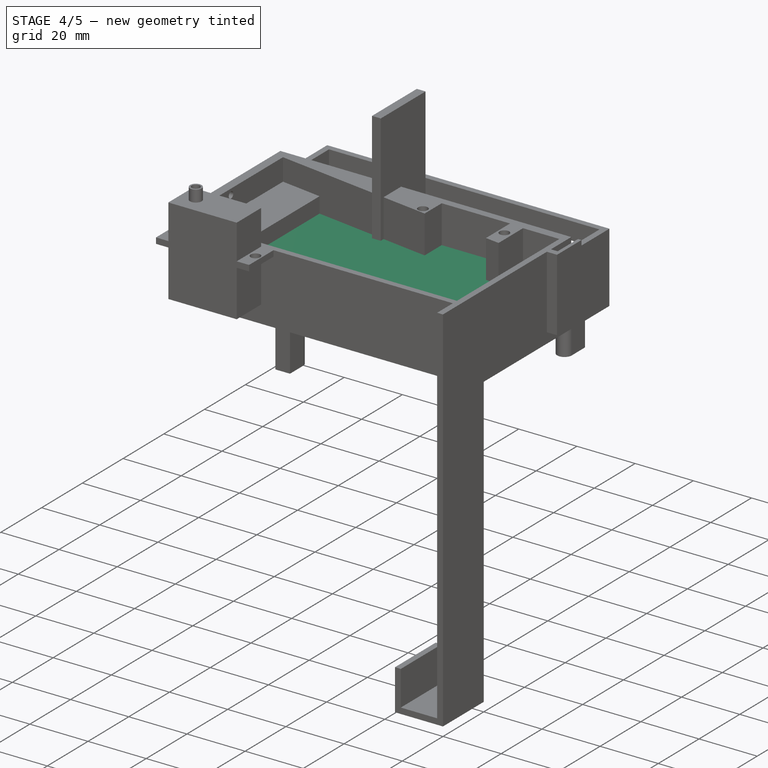
[diagram: stage 4 of 5 — iso view after this stage's code; geometry added in this stage tinted green]
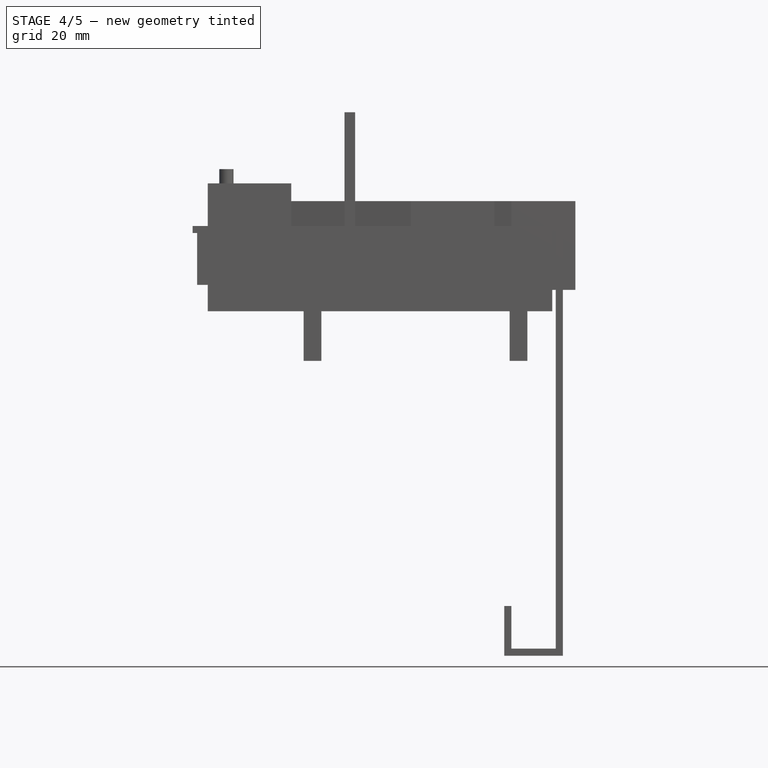
[diagram: stage 4 of 5 — front view after this stage's code; geometry added in this stage tinted green]
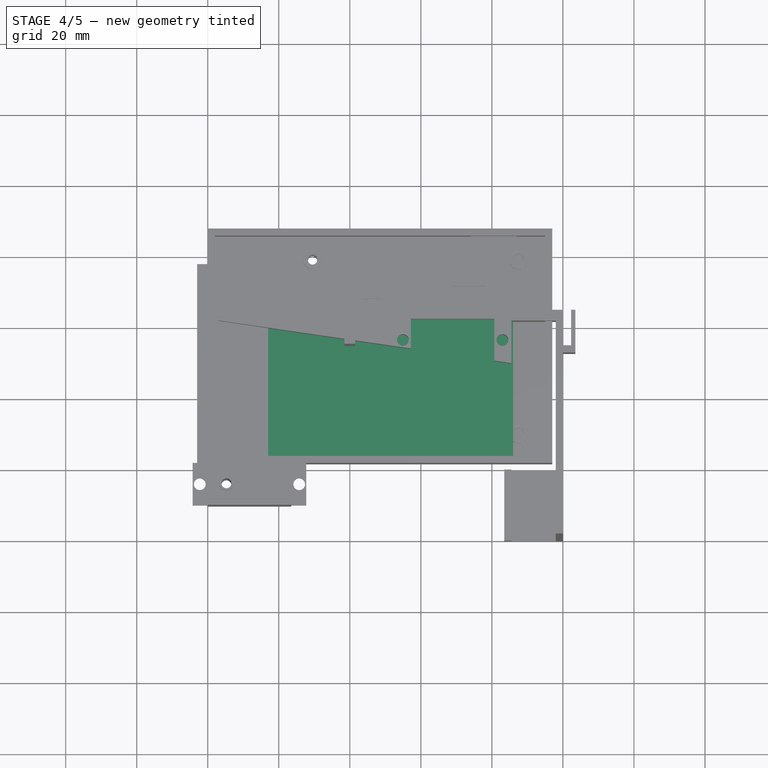
[diagram: stage 4 of 5 — top view after this stage's code; geometry added in this stage tinted green]
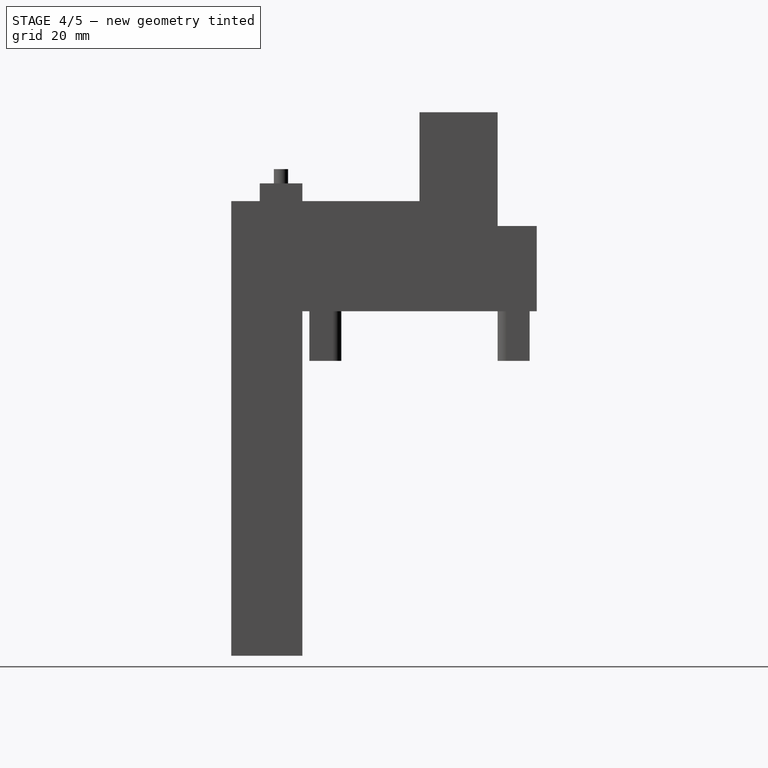
[diagram: stage 4 of 5 — right view after this stage's code; geometry added in this stage tinted green]
FEATURE [PartDesign::CoordinateSystem] CA_ArmTop
  AttacherType = Attacher::AttachEngine3D
  MapMode = 45
  Placement = pos=(100,33,12.5) rot=(0,0,1;0rad)
  Support = -> [Pad015]
FEATURE [App::Link] CameraArm001
  AssemblyType = Asm4EE
  AttachedBy = #CA_ArmTop
  AttachedTo = HousingTop001#HT_ArmClipInside
  AttachmentOffset = pos=(0,0,0) rot=(-0.707107,0.707107,0;3.14159rad)
  LinkPlacement = pos=(0.5,61,127.4) rot=(-0.57735,-0.57735,0.57735;4.18879rad)
  LinkedObject = -> CameraArm
  Placement = pos=(0.5,61,127.4) rot=(-0.57735,-0.57735,0.57735;4.18879rad)
  expr: Placement = HousingTop001.Placement * HT_ArmClipInside.Placement * AttachmentOffset * CA_ArmTop.Placement ^ -1
FEATURE [Spreadsheet::Sheet] Spreadsheet002  label="DisplayProps"
  cells = A2=HoleRadius; B2(HoleRadius)==1.5mm; A3=HoleDistanceX; B3(HoleDistanceX)==75.5mm; A4=HoleDistanceY; B4(HoleDistanceY)==30.5mm; A5=BoardX; B5(BoardX)==80mm; A6=BoardY; B6(BoardY)==36.2mm; A7=BoardZ; B7(BoardZ)==1.6mm; A8=DisplayX; B8(DisplayX)==72mm; A9=DisplayY; B9(DisplayY)==25mm; A10=DisplayZ; B10(DisplayZ)==6.7mm; A12=Calculated Props; A13=DisplayOffsetX; B13(DisplayOffsetX)==(BoardX - DisplayX) / 2; A14=DisplayOffsetY; B14(DisplayOffsetY)==(BoardY - DisplayY) / 2; A15=HoleOffsetX; B15(HoleOffsetX)==(BoardX - HoleDistanceX) / 2; A16=HoleOffsetY; B16(HoleOffsetY)==(BoardY - HoleDistanceY) / 2
FEATURE [PartDesign::CoordinateSystem] LCS_0002
  AttacherType = Attacher::AttachEngine3D
  MapMode = 2
  Support = -> [X_Axis006]
FEATURE [PartDesign::AdditiveBox] Box004  label="DP_Board"
  AttacherType = Attacher::AttachEngine3D
  Height = 1.6
  Length = 80
  Width = 36.2
  expr: Height = <<DisplayProps>>.BoardZ
  expr: Width = <<DisplayProps>>.BoardY
  expr: Length = <<DisplayProps>>.BoardX
FEATURE [PartDesign::AdditiveBox] Box005  label="DP_DisplayBlock"
  AttacherType = Attacher::AttachEngine3D
  AttachmentOffset = pos=(4,5.6,1.6) rot=(0,0,1;0rad)
  BaseFeature = -> Box004
  Height = 6.7
  Length = 72
  MapMode = 5
  Placement = pos=(4,5.6,1.6) rot=(0,0,1;0rad)
  Support = -> [XY_Plane006]
  Width = 25
  expr: .AttachmentOffset.Base.z = <<DisplayProps>>.BoardZ
  expr: .AttachmentOffset.Base.y = <<DisplayProps>>.DisplayOffsetY
  expr: .AttachmentOffset.Base.x = <<DisplayProps>>.DisplayOffsetX
  expr: Height = <<DisplayProps>>.DisplayZ
  expr: Width = <<DisplayProps>>.DisplayY
  expr: Length = <<DisplayProps>>.DisplayX
FEATURE [Sketcher::SketchObject] Sketch019  label="DP_HolesSketch"
  FullyConstrained = true
  MapMode = 5
  Support = -> [XY_Plane006]
  expr: Constraints[11] = <<DisplayProps>>.HoleOffsetY
  expr: Constraints[10] = <<DisplayProps>>.HoleOffsetX
  expr: Constraints[9] = <<DisplayProps>>.HoleDistanceY
  expr: Constraints[16] = <<DisplayProps>>.HoleRadius
  expr: Constraints[8] = <<DisplayProps>>.HoleDistanceX
  sketch-geometry (8):
    g0: LineSegment StartX=2.25 StartY=33.35 StartZ=0 EndX=77.75 EndY=33.35 EndZ=0
    g1: LineSegment StartX=77.75 StartY=33.35 StartZ=0 EndX=77.75 EndY=2.85 EndZ=0
    g2: LineSegment StartX=77.75 StartY=2.85 StartZ=0 EndX=2.25 EndY=2.85 EndZ=0
    g3: LineSegment StartX=2.25 StartY=2.85 StartZ=0 EndX=2.25 EndY=33.35 EndZ=0
    g4: Circle CenterX=2.25 CenterY=33.35 CenterZ=0 NormalX=0 NormalY=0 NormalZ=1 AngleXU=0 Radius=1.5
    g5: Circle CenterX=77.75 CenterY=33.35 CenterZ=0 NormalX=0 NormalY=0 NormalZ=1 AngleXU=0 Radius=1.5
    g6: Circle CenterX=77.75 CenterY=2.85 CenterZ=0 NormalX=0 NormalY=0 NormalZ=1 AngleXU=0 Radius=1.5
    g7: Circle CenterX=2.25 CenterY=2.85 CenterZ=0 NormalX=0 NormalY=0 NormalZ=1 AngleXU=0 Radius=1.5
  constraints (20):
    c: Coincident(g0,g1)
    c: Coincident(g1,g2)
    c: Coincident(g2,g3)
    c: Coincident(g3,g0)
    c: Horizontal(g0)
    c: Horizontal(g2)
    c: Vertical(g1)
    c: Vertical(g3)
    c: Distance(g0) = 75.5
    c: Distance(g1) = 30.5
    c: DistanceX(g-1,g2) = 2.25
    c: DistanceY(g-1,g2) = 2.85
    c: Coincident(g4,g0)
    c: Coincident(g5,g0)
    c: Coincident(g6,g1)
    c: Coincident(g7,g2)
    c: Radius(g4) = 1.5
    c: Equal(g4,g5)
    c: Equal(g4,g6)
    c: Equal(g4,g7)
FEATURE [PartDesign::Pocket] Pocket002  label="DP_Holes"
  BaseFeature = -> Box005
  Length = 5
  Length2 = 100
  Placement = pos=(4,5.6,1.6) rot=(0,0,1;0rad)
  Profile = -> Sketch019
  Reversed = true
  Type = 0
FEATURE [PartDesign::CoordinateSystem] LCS_0003
  AttacherType = Attacher::AttachEngine3D
  MapMode = 2
  Support = -> [X_Axis007]
FEATURE [PartDesign::AdditiveBox] Box006  label="DHB_Base"
  AttacherType = Attacher::AttachEngine3D
  Height = 12
  Length = 86
  Width = 42.2
  expr: Width = <<DisplayProps>>.BoardY + 6mm
  expr: Length = <<DisplayProps>>.BoardX + 6mm
FEATURE [PartDesign::SubtractiveBox] Box011  label="DHT_BaseCutout"
  AttacherType = Attacher::AttachEngine3D
  AttachmentOffset = pos=(2,2,2) rot=(0,0,1;0rad)
  BaseFeature = -> Box010
  Height = 9.5
  Length = 82
  MapMode = 5
  Placement = pos=(2,2,2) rot=(0,0,1;0rad)
  Support = -> [XY_Plane008]
  Width = 38.2
  expr: Height = <<DHT_Base>>.Height - 2mm
  expr: Width = <<DHT_Base>>.Width - 4mm
  expr: Length = <<DHT_Base>>.Length - 4mm
FEATURE [Sketcher::SketchObject] Sketch022  label="DHT_HoleSpacersSketch"
  AttachmentOffset = pos=(0,0,2) rot=(0,0,1;0rad)
  FullyConstrained = true
  MapMode = 5
  Placement = pos=(0,0,2) rot=(0,0,1;0rad)
  Support = -> [XY_Plane008]
  expr: Constraints[39] = <<DisplayProps>>.HoleRadius + 1.2mm
  expr: Constraints[20] = <<DisplayProps>>.HoleDistanceY
  expr: Constraints[19] = <<DisplayProps>>.HoleDistanceX
  expr: Constraints[18] = <<DHT_Base>>.Width
  expr: Constraints[17] = <<DHT_Base>>.Length
  sketch-geometry (16):
    g0: LineSegment StartX=0 StartY=0 StartZ=0 EndX=86 EndY=0 EndZ=0
    g1: LineSegment StartX=86 StartY=0 StartZ=0 EndX=86 EndY=42.2 EndZ=0
    g2: LineSegment StartX=86 StartY=42.2 StartZ=0 EndX=0 EndY=42.2 EndZ=0
    g3: LineSegment StartX=0 StartY=42.2 StartZ=0 EndX=0 EndY=0 EndZ=0
    g4: LineSegment StartX=5.25 StartY=36.35 StartZ=0 EndX=80.75 EndY=36.35 EndZ=0
    g5: LineSegment StartX=80.75 StartY=36.35 StartZ=0 EndX=80.75 EndY=5.85 EndZ=0
    g6: LineSegment StartX=80.75 StartY=5.85 StartZ=0 EndX=5.25 EndY=5.85 EndZ=0
    g7: LineSegment StartX=5.25 StartY=5.85 StartZ=0 EndX=5.25 EndY=36.35 EndZ=0
    g8: LineSegment StartX=80.75 StartY=36.35 StartZ=0 EndX=80.75 EndY=42.2 EndZ=0
    g9: LineSegment StartX=80.75 StartY=36.35 StartZ=0 EndX=86 EndY=36.35 EndZ=0
    g10: LineSegment StartX=5.25 StartY=5.85 StartZ=0 EndX=5.25 EndY=0 EndZ=0
    g11: LineSegment StartX=5.25 StartY=5.85 StartZ=0 EndX=0 EndY=5.85 EndZ=0
    g12: Circle CenterX=5.25 CenterY=36.35 CenterZ=0 NormalX=0 NormalY=0 NormalZ=1 AngleXU=0 Radius=2.7
    g13: Circle CenterX=80.75 CenterY=36.35 CenterZ=0 NormalX=0 NormalY=0 NormalZ=1 AngleXU=0 Radius=2.7
    g14: Circle CenterX=80.75 CenterY=5.85 CenterZ=0 NormalX=0 NormalY=0 NormalZ=1 AngleXU=0 Radius=2.7
    g15: Circle CenterX=5.25 CenterY=5.85 CenterZ=0 NormalX=0 NormalY=0 NormalZ=1 AngleXU=0 Radius=2.7
  constraints (43):
    c: Coincident(g0,g1)
    c: Coincident(g1,g2)
    c: Coincident(g2,g3)
    c: Coincident(g3,g0)
    c: Horizontal(g0)
    c: Horizontal(g2)
    c: Vertical(g1)
    c: Vertical(g3)
    c: Coincident(g0,g-1)
    c: Coincident(g4,g5)
    c: Coincident(g5,g6)
    c: Coincident(g6,g7)
    c: Coincident(g7,g4)
    c: Horizontal(g4)
    c: Horizontal(g6)
    c: Vertical(g5)
    c: Vertical(g7)
    c: Distance(g2) = 86
    c: Distance(g3) = 42.2
    c: Distance(g4) = 75.5
    c: Distance(g5) = 30.5
    c: Coincident(g8,g4)
    c: PointOnObject(g8,g2)
    c: Vertical(g8)
    c: Coincident(g9,g4)
    c: PointOnObject(g9,g1)
    c: Horizontal(g9)
    c: Coincident(g10,g6)
    c: PointOnObject(g10,g0)
    c: Vertical(g10)
    c: Coincident(g11,g6)
    c: PointOnObject(g11,g3)
    c: Horizontal(g11)
    c: Equal(g11,g9)
    c: Equal(g10,g8)
    c: Coincident(g12,g4)
    c: Coincident(g13,g4)
    c: Coincident(g14,g5)
    c: Coincident(g15,g6)
    c: Radius(g12) = 2.7
    c: Equal(g12,g13)
    c: Equal(g12,g14)
    c: Equal(g12,g15)
FEATURE [PartDesign::Pad] Pad017  label="DHT_HoleSpacers"
  BaseFeature = -> Box011
  Direction = (1,1,1)
  Length = 6
  Length2 = 100
  Placement = pos=(2,2,2) rot=(0,0,1;0rad)
  Profile = -> Sketch022
  Type = 0
FEATURE [Sketcher::SketchObject] Sketch023  label="DHT_DisplayCutoutSketch"
  FullyConstrained = true
  MapMode = 5
  Support = -> [XY_Plane008]
  expr: Constraints[20] = <<DisplayProps>>.DisplayY
  expr: Constraints[19] = <<DisplayProps>>.DisplayX
  expr: Constraints[18] = <<DHT_Base>>.Width
  expr: Constraints[17] = <<DHT_Base>>.Length
  sketch-geometry (12):
    g0: LineSegment StartX=0 StartY=0 StartZ=0 EndX=86 EndY=0 EndZ=0
    g1: LineSegment StartX=86 StartY=0 StartZ=0 EndX=86 EndY=42.2 EndZ=0
    g2: LineSegment StartX=86 StartY=42.2 StartZ=0 EndX=0 EndY=42.2 EndZ=0
    g3: LineSegment StartX=0 StartY=42.2 StartZ=0 EndX=0 EndY=0 EndZ=0
    g4: LineSegment StartX=7 StartY=33.6 StartZ=0 EndX=79 EndY=33.6 EndZ=0
    g5: LineSegment StartX=79 StartY=33.6 StartZ=0 EndX=79 EndY=8.6 EndZ=0
    g6: LineSegment StartX=79 StartY=8.6 StartZ=0 EndX=7 EndY=8.6 EndZ=0
    g7: LineSegment StartX=7 StartY=8.6 StartZ=0 EndX=7 EndY=33.6 EndZ=0
    g8: LineSegment StartX=79 StartY=33.6 StartZ=0 EndX=86 EndY=33.6 EndZ=0
    g9: LineSegment StartX=79 StartY=33.6 StartZ=0 EndX=79 EndY=42.2 EndZ=0
    g10: LineSegment StartX=7 StartY=8.6 StartZ=0 EndX=0 EndY=8.6 EndZ=0
    g11: LineSegment StartX=7 StartY=8.6 StartZ=0 EndX=7 EndY=0 EndZ=0
  constraints (35):
    c: Coincident(g0,g1)
    c: Coincident(g1,g2)
    c: Coincident(g2,g3)
    c: Coincident(g3,g0)
    c: Horizontal(g0)
    c: Horizontal(g2)
    c: Vertical(g1)
    c: Vertical(g3)
    c: Coincident(g0,g-1)
    c: Coincident(g4,g5)
    c: Coincident(g5,g6)
    c: Coincident(g6,g7)
    c: Coincident(g7,g4)
    c: Horizontal(g4)
    c: Horizontal(g6)
    c: Vertical(g5)
    c: Vertical(g7)
    c: Distance(g2) = 86
    c: Distance(g3) = 42.2
    c: Distance(g4) = 72
    c: Distance(g5) = 25
    c: Coincident(g8,g4)
    c: PointOnObject(g8,g1)
    c: Horizontal(g8)
    c: Coincident(g9,g4)
    c: PointOnObject(g9,g2)
    c: Vertical(g9)
    c: Coincident(g10,g6)
    c: PointOnObject(g10,g3)
    c: Horizontal(g10)
    c: Coincident(g11,g6)
    c: PointOnObject(g11,g0)
    c: Vertical(g11)
    c: Equal(g10,g8)
    c: Equal(g11,g9)
FEATURE [PartDesign::Pocket] Pocket005  label="DHT_DisplayCutout"
  BaseFeature = -> Pad017
  Length = 2
  Length2 = 100
  Placement = pos=(2,2,2) rot=(0,0,1;0rad)
  Profile = -> Sketch023
  Reversed = true
  Type = 0
FEATURE [Sketcher::SketchObject] Sketch024  label="DHT_HolesSketch"
  FullyConstrained = true
  MapMode = 5
  Support = -> [XY_Plane008]
  expr: Constraints[39] = <<DisplayProps>>.HoleRadius + 0.2mm
  expr: Constraints[20] = <<DisplayProps>>.HoleDistanceY
  expr: Constraints[19] = <<DisplayProps>>.HoleDistanceX
  expr: Constraints[10] = <<DHT_Base>>.Width
  expr: Constraints[9] = <<DHT_Base>>.Length
  sketch-geometry (16):
    g0: LineSegment StartX=0 StartY=0 StartZ=0 EndX=86 EndY=0 EndZ=0
    g1: LineSegment StartX=86 StartY=0 StartZ=0 EndX=86 EndY=42.2 EndZ=0
    g2: LineSegment StartX=86 StartY=42.2 StartZ=0 EndX=0 EndY=42.2 EndZ=0
    g3: LineSegment StartX=0 StartY=42.2 StartZ=0 EndX=0 EndY=0 EndZ=0
    g4: LineSegment StartX=5.25 StartY=36.35 StartZ=0 EndX=80.75 EndY=36.35 EndZ=0
    g5: LineSegment StartX=80.75 StartY=36.35 StartZ=0 EndX=80.75 EndY=5.85 EndZ=0
    g6: LineSegment StartX=80.75 StartY=5.85 StartZ=0 EndX=5.25 EndY=5.85 EndZ=0
    g7: LineSegment StartX=5.25 StartY=5.85 StartZ=0 EndX=5.25 EndY=36.35 EndZ=0
    g8: LineSegment StartX=80.75 StartY=36.35 StartZ=0 EndX=86 EndY=36.35 EndZ=0
    g9: LineSegment StartX=80.75 StartY=36.35 StartZ=0 EndX=80.75 EndY=42.2 EndZ=0
    g10: LineSegment StartX=5.25 StartY=5.85 StartZ=0 EndX=5.25 EndY=0 EndZ=0
    g11: LineSegment StartX=5.25 StartY=5.85 StartZ=0 EndX=0 EndY=5.85 EndZ=0
    g12: Circle CenterX=5.25 CenterY=36.35 CenterZ=0 NormalX=0 NormalY=0 NormalZ=1 AngleXU=0 Radius=1.7
    g13: Circle CenterX=80.75 CenterY=36.35 CenterZ=0 NormalX=0 NormalY=0 NormalZ=1 AngleXU=0 Radius=1.7
    g14: Circle CenterX=80.75 CenterY=5.85 CenterZ=0 NormalX=0 NormalY=0 NormalZ=1 AngleXU=0 Radius=1.7
    g15: Circle CenterX=5.25 CenterY=5.85 CenterZ=0 NormalX=0 NormalY=0 NormalZ=1 AngleXU=0 Radius=1.7
  constraints (43):
    c: Coincident(g0,g1)
    c: Coincident(g1,g2)
    c: Coincident(g2,g3)
    c: Coincident(g3,g0)
    c: Horizontal(g0)
    c: Horizontal(g2)
    c: Vertical(g1)
    c: Vertical(g3)
    c: Coincident(g0,g-1)
    c: Distance(g2) = 86
    c: Distance(g3) = 42.2
    c: Coincident(g4,g5)
    c: Coincident(g5,g6)
    c: Coincident(g6,g7)
    c: Coincident(g7,g4)
    c: Horizontal(g4)
    c: Horizontal(g6)
    c: Vertical(g5)
    c: Vertical(g7)
    c: Distance(g4) = 75.5
    c: Distance(g7) = 30.5
    c: Coincident(g8,g4)
    c: PointOnObject(g8,g1)
    c: Horizontal(g8)
    c: Coincident(g9,g4)
    c: PointOnObject(g9,g2)
    c: Vertical(g9)
    c: Coincident(g10,g6)
    c: PointOnObject(g10,g0)
    c: Vertical(g10)
    c: Coincident(g11,g6)
    c: PointOnObject(g11,g3)
    c: Horizontal(g11)
    c: Equal(g11,g8)
    c: Equal(g10,g9)
    c: Coincident(g12,g4)
    c: Coincident(g13,g4)
    c: Coincident(g14,g5)
    c: Coincident(g15,g6)
    c: Radius(g12) = 1.7
    c: Equal(g12,g13)
    c: Equal(g12,g14)
    c: Equal(g12,g15)
FEATURE [PartDesign::Pocket] Pocket006  label="DHT_Holes"
  BaseFeature = -> Pocket005
  Length = 20
  Length2 = 100
  Placement = pos=(2,2,2) rot=(0,0,1;0rad)
  Profile = -> Sketch024
  Reversed = true
  Type = 0
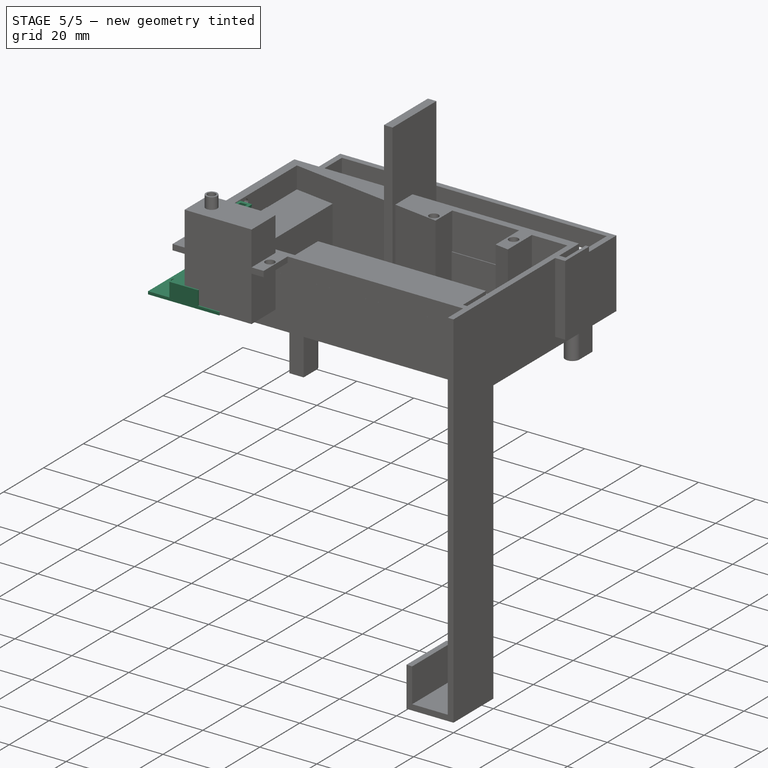
[diagram: stage 5 of 5 — iso view after this stage's code; geometry added in this stage tinted green]
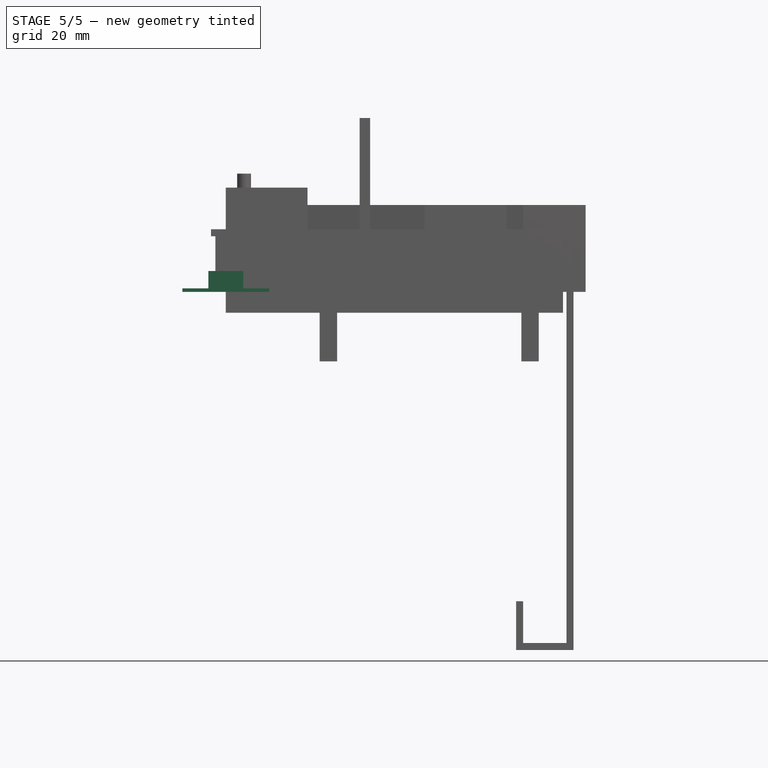
[diagram: stage 5 of 5 — front view after this stage's code; geometry added in this stage tinted green]
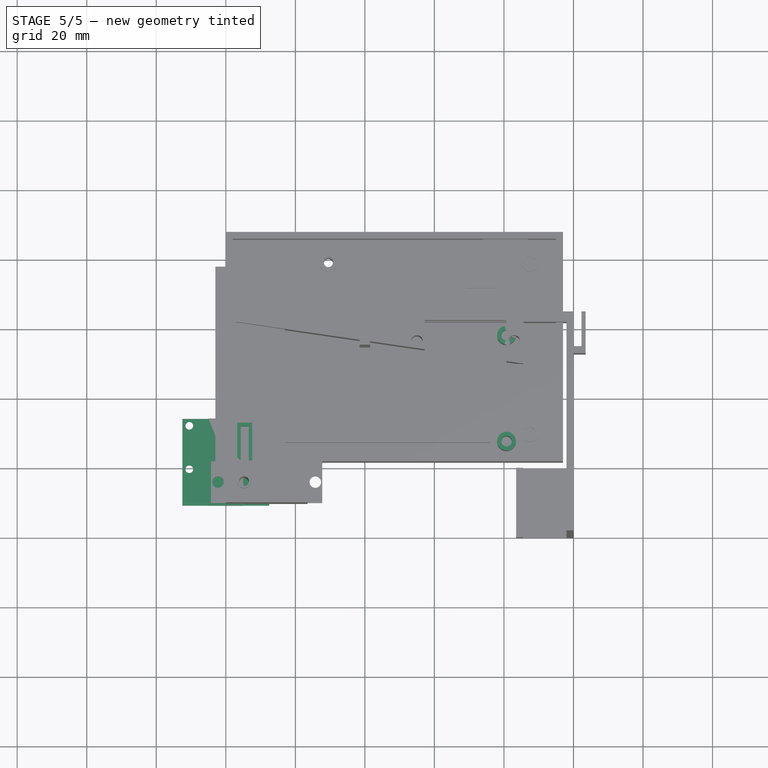
[diagram: stage 5 of 5 — top view after this stage's code; geometry added in this stage tinted green]
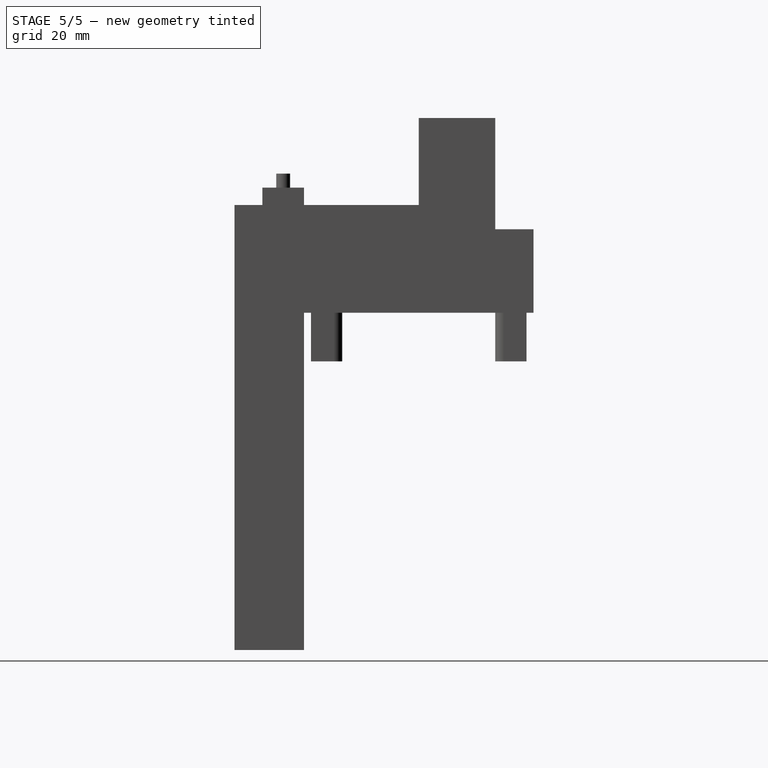
[diagram: stage 5 of 5 — right view after this stage's code; geometry added in this stage tinted green]
FEATURE [Sketcher::SketchObject] Sketch  label="CameraBoardSketch"
  FullyConstrained = true
  MapMode = 5
  Support = -> [XY_Plane]
  expr: Constraints[48] = <<CameraProps>>.HoleDistanceBottom
  expr: Constraints[46] = <<CameraProps>>.HoleDistanceTop
  expr: Constraints[47] = <<CameraProps>>.HoleDistanceSide
  expr: Constraints[12] = <<CameraProps>>.BoardSize
  sketch-geometry (17):
    g0: LineSegment StartX=12.5 StartY=12.5 StartZ=0 EndX=-12.5 EndY=12.5 EndZ=0
    g1: LineSegment StartX=-12.5 StartY=12.5 StartZ=0 EndX=-12.5 EndY=-12.5 EndZ=0
    g2: LineSegment StartX=-12.5 StartY=-12.5 StartZ=0 EndX=12.5 EndY=-12.5 EndZ=0
    g3: LineSegment StartX=12.5 StartY=-12.5 StartZ=0 EndX=12.5 EndY=12.5 EndZ=0
    g4: Circle CenterX=0 CenterY=0 CenterZ=0 NormalX=0 NormalY=0 NormalZ=1 AngleXU=0 Radius=17.6777
    g5: Circle CenterX=-10.5 CenterY=10.5 CenterZ=0 NormalX=0 NormalY=0 NormalZ=1 AngleXU=0 Radius=1.1
    g6: Circle CenterX=10.5 CenterY=10.5 CenterZ=0 NormalX=0 NormalY=0 NormalZ=1 AngleXU=0 Radius=1.1
    g7: Circle CenterX=-10.5 CenterY=-2 CenterZ=0 NormalX=0 NormalY=0 NormalZ=1 AngleXU=0 Radius=1.1
    g8: Circle CenterX=10.5 CenterY=-2 CenterZ=0 NormalX=0 NormalY=0 NormalZ=1 AngleXU=0 Radius=1.1
    g9: LineSegment StartX=-10.5 StartY=10.5 StartZ=0 EndX=-10.5 EndY=12.5 EndZ=0
    g10: LineSegment StartX=-10.5 StartY=10.5 StartZ=0 EndX=-12.5 EndY=10.5 EndZ=0
    g11: LineSegment StartX=10.5 StartY=10.5 StartZ=0 EndX=12.5 EndY=10.5 EndZ=0
    g12: LineSegment StartX=10.5 StartY=10.5 StartZ=0 EndX=10.5 EndY=12.5 EndZ=0
    g13: LineSegment StartX=-10.5 StartY=-2 StartZ=0 EndX=-12.5 EndY=-2 EndZ=0
    g14: LineSegment StartX=-10.5 StartY=-2 StartZ=0 EndX=-10.5 EndY=-12.5 EndZ=0
    g15: LineSegment StartX=10.5 StartY=-2 StartZ=0 EndX=10.5 EndY=-12.5 EndZ=0
    g16: LineSegment StartX=10.5 StartY=-2 StartZ=0 EndX=12.5 EndY=-2 EndZ=0
  constraints (50):
    c: Coincident(g0,g1)
    c: Coincident(g1,g2)
    c: Coincident(g2,g3)
    c: Coincident(g3,g0)
    c: Equal(g0,g1)
    c: Equal(g0,g2)
    c: Equal(g0,g3)
    c: PointOnObject(g0,g4)
    c: PointOnObject(g1,g4)
    c: PointOnObject(g2,g4)
    c: PointOnObject(g3,g4)
    c: Coincident(g4,g-1)
    c: Distance(g0) = 25
    c: Horizontal(g0)
    c: Radius(g5) = 1.1  'HoleRadius'
    c: Equal(g5,g6)
    c: Equal(g5,g8)
    c: Equal(g5,g7)
    c: Coincident(g9,g5)
    c: PointOnObject(g9,g0)
    c: Vertical(g9)
    c: Coincident(g10,g5)
    c: PointOnObject(g10,g1)
    c: Horizontal(g10)
    c: Coincident(g11,g6)
    c: PointOnObject(g11,g3)
    c: Horizontal(g11)
    c: Coincident(g12,g6)
    c: PointOnObject(g12,g0)
    c: Vertical(g12)
    c: Coincident(g13,g7)
    c: PointOnObject(g13,g1)
    c: Horizontal(g13)
    c: Coincident(g14,g7)
    c: PointOnObject(g14,g2)
    c: Vertical(g14)
    c: Coincident(g15,g8)
    c: PointOnObject(g15,g2)
    c: Vertical(g15)
    c: PointOnObject(g16,g3)
    c: Horizontal(g16)
    c: Equal(g10,g13)
    c: Equal(g13,g16)
    c: Equal(g16,g11)
    c: Equal(g9,g12)
    c: Equal(g14,g15)
    c: Distance(g9) = 2
    c: Distance(g10) = 2
    c: Distance(g14) = 10.5
    c: Coincident(g16,g8)
FEATURE [PartDesign::Pad] Pad  label="CameraBoard"
  Direction = (1,1,1)
  Length = 1
  Length2 = 100
  Profile = -> Sketch
  Type = 0
FEATURE [Sketcher::SketchObject] Sketch001  label="LensBumpSketch"
  FullyConstrained = true
  MapMode = 5
  Support = -> [XY_Plane]
  expr: Constraints[6] = <<CameraProps>>.LensBumpWidth
  expr: Constraints[7] = <<CameraProps>>.BoardSize
  sketch-geometry (4):
    g0: LineSegment StartX=-5 StartY=12.5 StartZ=0 EndX=5 EndY=12.5 EndZ=0
    g1: LineSegment StartX=5 StartY=12.5 StartZ=0 EndX=5 EndY=-12.5 EndZ=0
    g2: LineSegment StartX=5 StartY=-12.5 StartZ=0 EndX=-5 EndY=-12.5 EndZ=0
    g3: LineSegment StartX=-5 StartY=-12.5 StartZ=0 EndX=-5 EndY=12.5 EndZ=0
  constraints (10):
    c: Coincident(g0,g1)
    c: Coincident(g1,g2)
    c: Coincident(g2,g3)
    c: Coincident(g3,g0)
    c: Horizontal(g2)
    c: Vertical(g1)
    c: Distance(g2) = 10
    c: Distance(g1) = 25
    c: Symmetric(g0,g0,g-2)
    c: Symmetric(g0,g2,g-1)
FEATURE [PartDesign::Pad] Pad001  label="LensBump"
  BaseFeature = -> Pad
  Direction = (1,1,1)
  Length = 6
  Length2 = 100
  Profile = -> Sketch001
  Type = 0
FEATURE [PartDesign::SubtractiveBox] Box007  label="DHB_BaseCutout"
  AttacherType = Attacher::AttachEngine3D
  AttachmentOffset = pos=(2,2,2) rot=(0,0,1;0rad)
  BaseFeature = -> Box006
  Height = 10
  Length = 82
  MapMode = 5
  Placement = pos=(2,2,2) rot=(0,0,1;0rad)
  Support = -> [XY_Plane007]
  Width = 38.2
  expr: Width = <<DHB_Base>>.Width - 4mm
  expr: Length = <<DHB_Base>>.Length - 4mm
FEATURE [Sketcher::SketchObject] Sketch020  label="DHB_HoleSpacersSketch"
  FullyConstrained = true
  MapMode = 5
  Support = -> [XY_Plane007]
  expr: Constraints[11] = 3mm + <<DisplayProps>>.HoleOffsetY
  expr: Constraints[10] = 3mm + <<DisplayProps>>.HoleOffsetX
  expr: Constraints[9] = <<DisplayProps>>.HoleDistanceY
  expr: Constraints[16] = <<DisplayProps>>.HoleRadius + 1.2mm
  expr: Constraints[8] = <<DisplayProps>>.HoleDistanceX
  sketch-geometry (8):
    g0: LineSegment StartX=5.25 StartY=36.35 StartZ=0 EndX=80.75 EndY=36.35 EndZ=0
    g1: LineSegment StartX=80.75 StartY=36.35 StartZ=0 EndX=80.75 EndY=5.85 EndZ=0
    g2: LineSegment StartX=80.75 StartY=5.85 StartZ=0 EndX=5.25 EndY=5.85 EndZ=0
    g3: LineSegment StartX=5.25 StartY=5.85 StartZ=0 EndX=5.25 EndY=36.35 EndZ=0
    g4: Circle CenterX=5.25 CenterY=36.35 CenterZ=0 NormalX=0 NormalY=0 NormalZ=1 AngleXU=0 Radius=2.7
    g5: Circle CenterX=80.75 CenterY=36.35 CenterZ=0 NormalX=0 NormalY=0 NormalZ=1 AngleXU=0 Radius=2.7
    g6: Circle CenterX=80.75 CenterY=5.85 CenterZ=0 NormalX=0 NormalY=0 NormalZ=1 AngleXU=0 Radius=2.7
    g7: Circle CenterX=5.25 CenterY=5.85 CenterZ=0 NormalX=0 NormalY=0 NormalZ=1 AngleXU=0 Radius=2.7
  constraints (20):
    c: Coincident(g0,g1)
    c: Coincident(g1,g2)
    c: Coincident(g2,g3)
    c: Coincident(g3,g0)
    c: Horizontal(g0)
    c: Horizontal(g2)
    c: Vertical(g1)
    c: Vertical(g3)
    c: Distance(g0) = 75.5
    c: Distance(g1) = 30.5
    c: DistanceX(g-1,g2) = 5.25
    c: DistanceY(g-1,g2) = 5.85
    c: Coincident(g4,g0)
    c: Coincident(g5,g0)
    c: Coincident(g6,g1)
    c: Coincident(g7,g2)
    c: Radius(g4) = 2.7
    c: Equal(g4,g5)
    c: Equal(g4,g6)
    c: Equal(g4,g7)
FEATURE [PartDesign::Pad] Pad016  label="HoleSpacers"
  BaseFeature = -> Box007
  Direction = (1,1,1)
  Length = 14
  Length2 = 100
  Placement = pos=(2,2,2) rot=(0,0,1;0rad)
  Profile = -> Sketch020
  Type = 0
FEATURE [Sketcher::SketchObject] Sketch021  label="DHB_HolesSketch"
  AttachmentOffset = pos=(0,0,2) rot=(0,0,1;0rad)
  FullyConstrained = true
  MapMode = 5
  Placement = pos=(0,0,2) rot=(0,0,1;0rad)
  Support = -> [XY_Plane007]
  expr: Constraints[11] = 3mm + <<DisplayProps>>.HoleOffsetY
  expr: Constraints[10] = 3mm + <<DisplayProps>>.HoleOffsetX
  expr: Constraints[9] = <<DisplayProps>>.HoleDistanceY
  expr: Constraints[16] = <<DisplayProps>>.HoleRadius
  expr: Constraints[8] = <<DisplayProps>>.HoleDistanceX
  sketch-geometry (8):
    g0: LineSegment StartX=5.25 StartY=36.35 StartZ=0 EndX=80.75 EndY=36.35 EndZ=0
    g1: LineSegment StartX=80.75 StartY=36.35 StartZ=0 EndX=80.75 EndY=5.85 EndZ=0
    g2: LineSegment StartX=80.75 StartY=5.85 StartZ=0 EndX=5.25 EndY=5.85 EndZ=0
    g3: LineSegment StartX=5.25 StartY=5.85 StartZ=0 EndX=5.25 EndY=36.35 EndZ=0
    g4: Circle CenterX=5.25 CenterY=36.35 CenterZ=0 NormalX=0 NormalY=0 NormalZ=1 AngleXU=0 Radius=1.5
    g5: Circle CenterX=80.75 CenterY=36.35 CenterZ=0 NormalX=0 NormalY=0 NormalZ=1 AngleXU=0 Radius=1.5
    g6: Circle CenterX=80.75 CenterY=5.85 CenterZ=0 NormalX=0 NormalY=0 NormalZ=1 AngleXU=0 Radius=1.5
    g7: Circle CenterX=5.25 CenterY=5.85 CenterZ=0 NormalX=0 NormalY=0 NormalZ=1 AngleXU=0 Radius=1.5
  constraints (20):
    c: Coincident(g0,g1)
    c: Coincident(g1,g2)
    c: Coincident(g2,g3)
    c: Coincident(g3,g0)
    c: Horizontal(g0)
    c: Horizontal(g2)
    c: Vertical(g1)
    c: Vertical(g3)
    c: Distance(g0) = 75.5
    c: Distance(g1) = 30.5
    c: DistanceX(g-1,g2) = 5.25
    c: DistanceY(g-1,g2) = 5.85
    c: Coincident(g4,g0)
    c: Coincident(g5,g0)
    c: Coincident(g6,g1)
    c: Coincident(g7,g2)
    c: Radius(g4) = 1.5
    c: Equal(g4,g5)
    c: Equal(g4,g6)
    c: Equal(g4,g7)
FEATURE [PartDesign::Pocket] Pocket003  label="DHB_Holes"
  BaseFeature = -> Pad016
  Length = 14
  Length2 = 100
  Placement = pos=(2,2,2) rot=(0,0,1;0rad)
  Profile = -> Sketch021
  Reversed = true
  Type = 0
FEATURE [PartDesign::CoordinateSystem] HT_ArmClipInside
  AttacherType = Attacher::AttachEngine3D
  MapMode = 45
  Placement = pos=(33.5,48.5,2) rot=(0,0.707107,0.707107;3.14159rad)
  Support = -> [Pocket004]
FEATURE [PartDesign::SubtractiveBox] Box008  label="DHB_CablesCutout"
  AttacherType = Attacher::AttachEngine3D
  AttachmentOffset = pos=(0,20,4) rot=(0,0,1;0rad)
  BaseFeature = -> Pocket003
  Height = 5
  Length = 2
  MapMode = 5
  Placement = pos=(0,20,4) rot=(0,0,1;0rad)
  Support = -> [XY_Plane007]
  Width = 15
FEATURE [PartDesign::SubtractiveBox] Box009  label="DHB_ClipCutout"
  AttacherType = Attacher::AttachEngine3D
  AttachmentOffset = pos=(29.5,0,2) rot=(0,0,1;0rad)
  BaseFeature = -> Box008
  Height = 1.5
  Length = 27
  MapMode = 5
  Placement = pos=(29.5,0,2) rot=(0,0,1;0rad)
  Support = -> [XY_Plane007]
  Width = 2
  expr: .AttachmentOffset.Base.x = (<<DisplayProps>>.BoardX + 6mm) / 2 - Length / 2
FEATURE [PartDesign::CoordinateSystem] LCS_0005
  AttacherType = Attacher::AttachEngine3D
  MapMode = 2
  Support = -> [X_Axis009]
FEATURE [Sketcher::SketchObject] Sketch025  label="ClipBaseSketch"
  FullyConstrained = true
  MapMode = 5
  Support = -> [XY_Plane009]
  sketch-geometry (14):
    g0: LineSegment StartX=0 StartY=0 StartZ=0 EndX=0 EndY=11 EndZ=0
    g1: LineSegment StartX=0 StartY=11 StartZ=0 EndX=1 EndY=11 EndZ=0
    g2: LineSegment StartX=1 StartY=11 StartZ=0 EndX=1 EndY=1 EndZ=0
    g3: LineSegment StartX=1 StartY=1 StartZ=0 EndX=3.3 EndY=1 EndZ=0
    g4: LineSegment StartX=3.3 StartY=1 StartZ=0 EndX=3.3 EndY=11 EndZ=0
    g5: LineSegment StartX=3.3 StartY=11 StartZ=0 EndX=7.6 EndY=11 EndZ=0
    g6: LineSegment StartX=7.6 StartY=11 StartZ=0 EndX=7.6 EndY=0 EndZ=0
    g7: LineSegment StartX=7.6 StartY=0 StartZ=0 EndX=6.6 EndY=0 EndZ=0
    g8: LineSegment StartX=6.6 StartY=0 StartZ=0 EndX=6.6 EndY=10 EndZ=0
    g9: LineSegment StartX=6.6 StartY=10 StartZ=0 EndX=4.3 EndY=10 EndZ=0
    g10: LineSegment StartX=4.3 StartY=10 StartZ=0 EndX=4.3 EndY=0 EndZ=0
    g11: LineSegment StartX=0 StartY=0 StartZ=0 EndX=4.3 EndY=0 EndZ=0
    g12: LineSegment StartX=4.3 StartY=10 StartZ=0 EndX=4.3 EndY=11 EndZ=0
    g13: LineSegment StartX=4.3 StartY=10 StartZ=0 EndX=3.3 EndY=10 EndZ=0
  constraints (41):
    c: Coincident(g0,g-1)
    c: PointOnObject(g0,g-2)
    c: Coincident(g1,g0)
    c: Horizontal(g1)
    c: Coincident(g2,g1)
    c: Vertical(g2)
    c: Coincident(g3,g2)
    c: Horizontal(g3)
    c: Coincident(g4,g3)
    c: Vertical(g4)
    c: Coincident(g5,g4)
    c: Horizontal(g5)
    c: Coincident(g6,g5)
    c: PointOnObject(g6,g-1)
    c: Vertical(g6)
    c: Coincident(g7,g6)
    c: PointOnObject(g7,g-1)
    c: Coincident(g8,g7)
    c: Vertical(g8)
    c: Coincident(g9,g8)
    c: Horizontal(g9)
    c: Coincident(g10,g9)
    c: PointOnObject(g10,g-1)
    c: Vertical(g10)
    c: Distance(g1) = 1
    c: Distance(g2) = 10
    c: Distance(g6) = 11
    c: Distance(g3) = 2.3
    c: Equal(g3,g9)
    c: Equal(g1,g7)
    c: Coincident(g11,g0)
    c: Coincident(g11,g10)
    c: Coincident(g12,g9)
    c: PointOnObject(g12,g5)
    c: Vertical(g12)
    c: Coincident(g13,g9)
    c: PointOnObject(g13,g4)
    c: Horizontal(g13)
    c: Equal(g12,g13)
    c: Equal(g1,g12)
    c: Equal(g2,g4)
FEATURE [PartDesign::Pad] Pad018  label="ClipBase"
  Direction = (1,1,1)
  Length = 25
  Length2 = 100
  Profile = -> Sketch025
  Type = 0
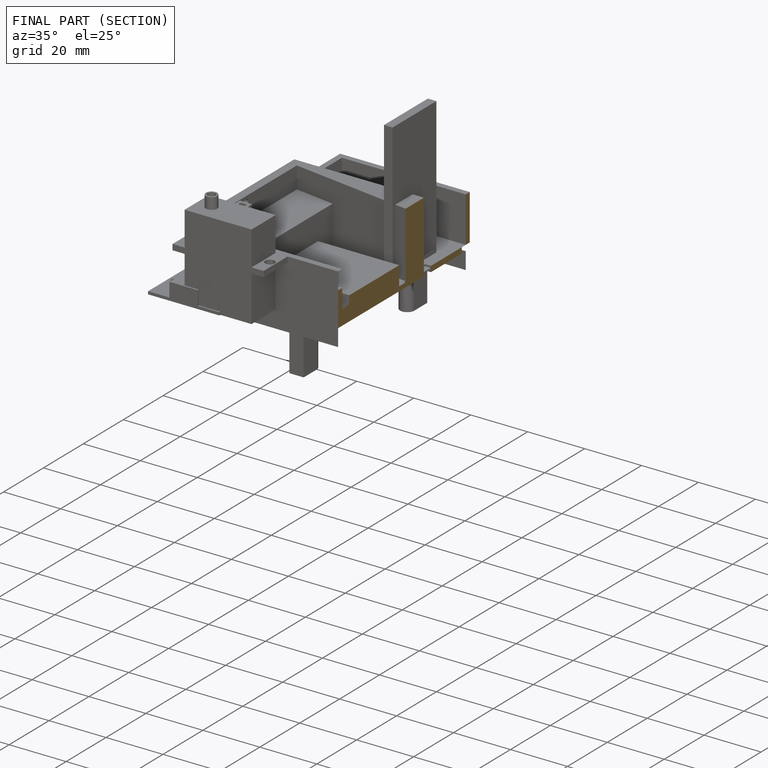
[diagram: finished part — half-section view (interior)]
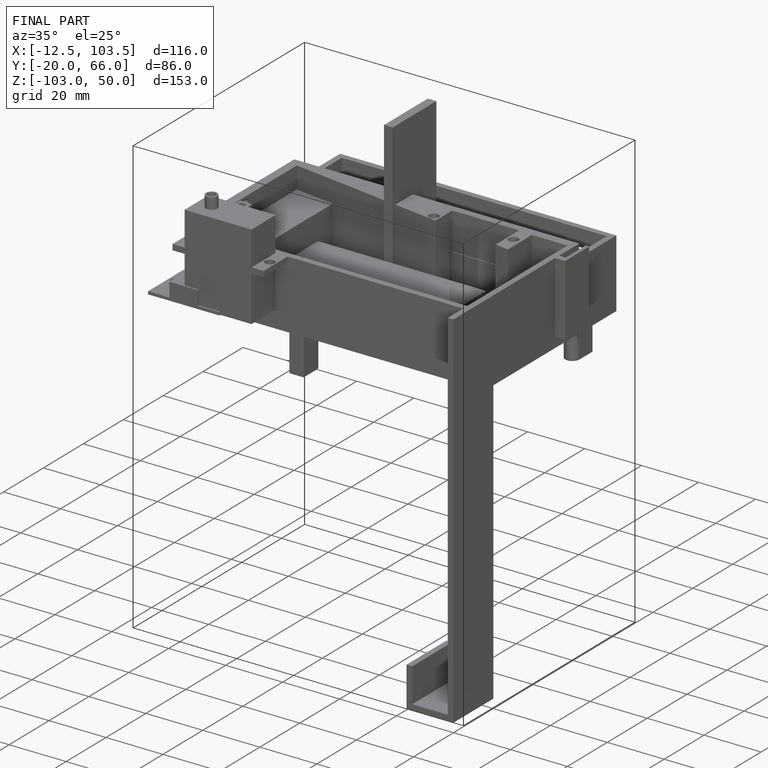
[diagram: finished part — iso view with bounding-box wireframe]
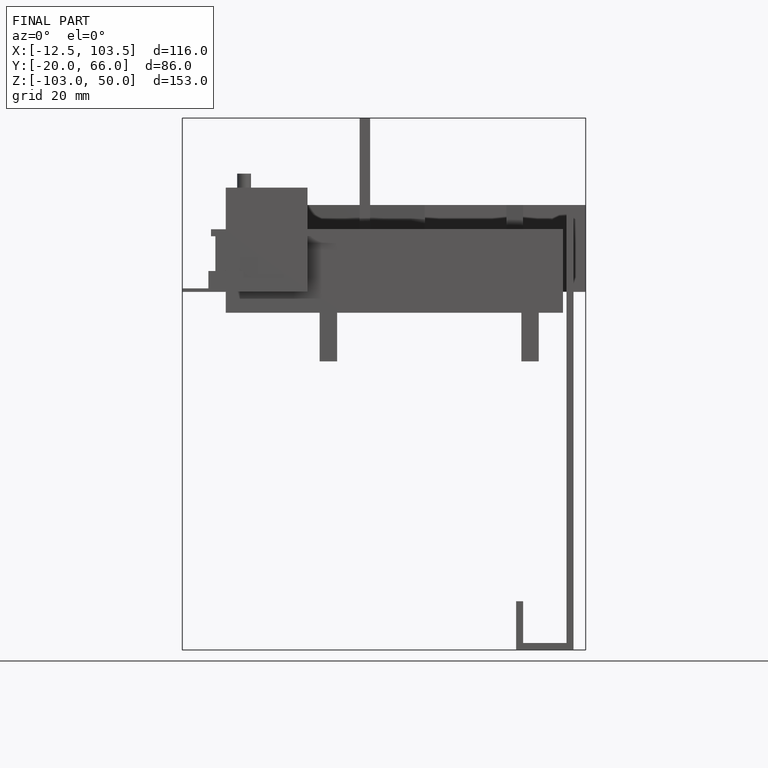
[diagram: finished part — front view with bounding-box wireframe]
